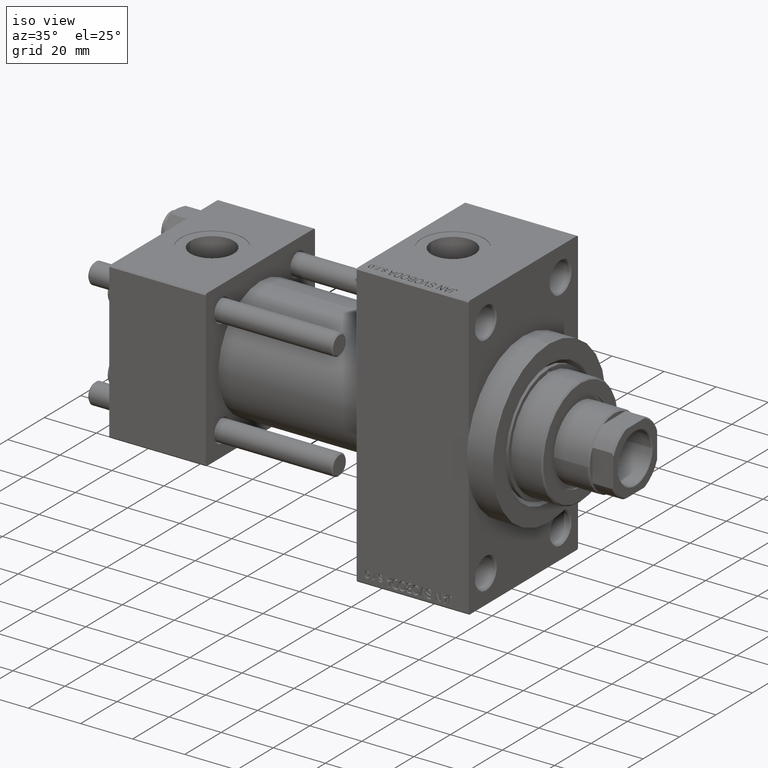
[diagram: clean part render]
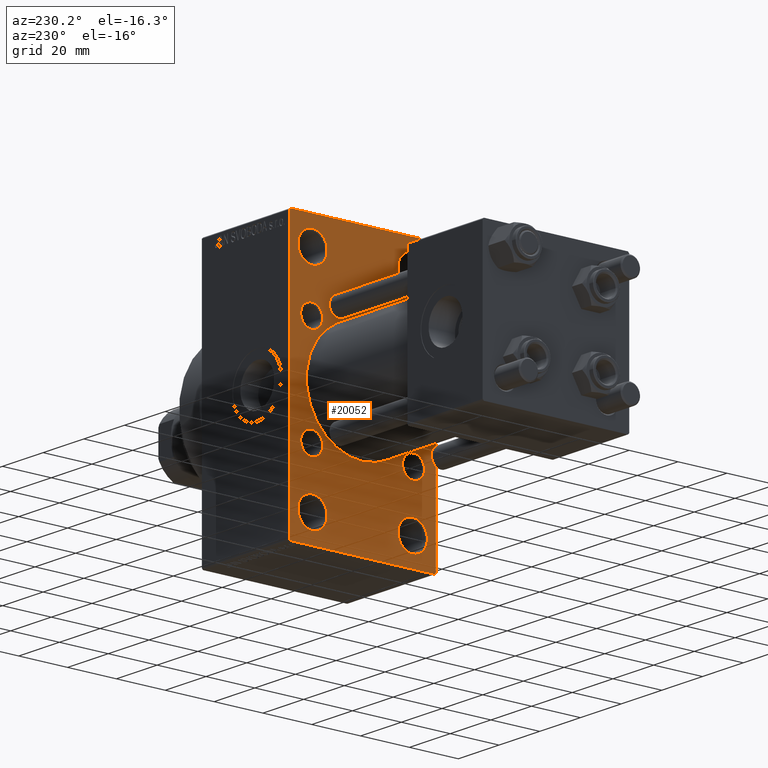
[diagram: tour spotlight — one face highlighted and labeled with its STEP entity id]
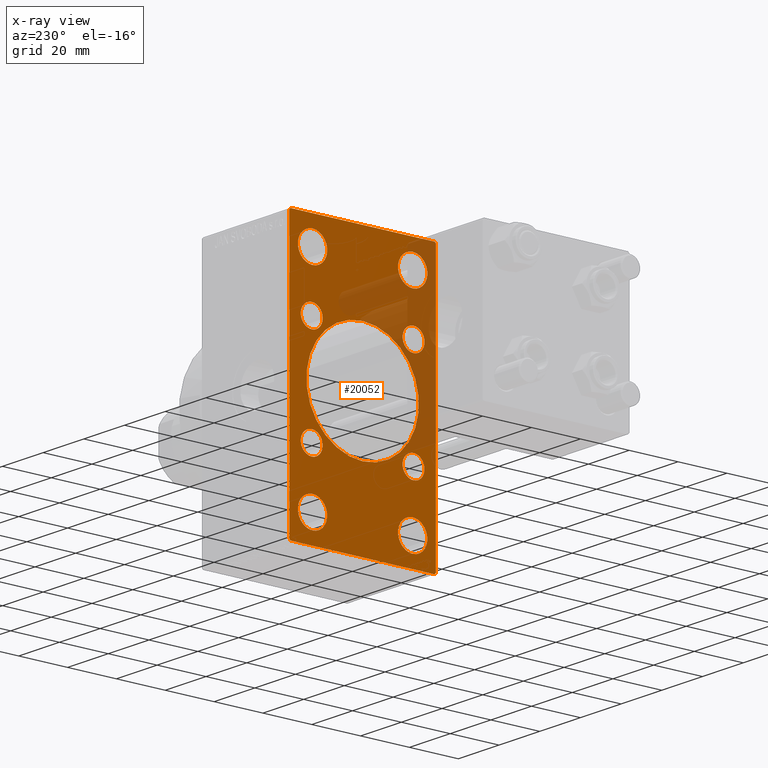
[diagram: x-ray of the same camera — body ghosted, this tour face saturated]
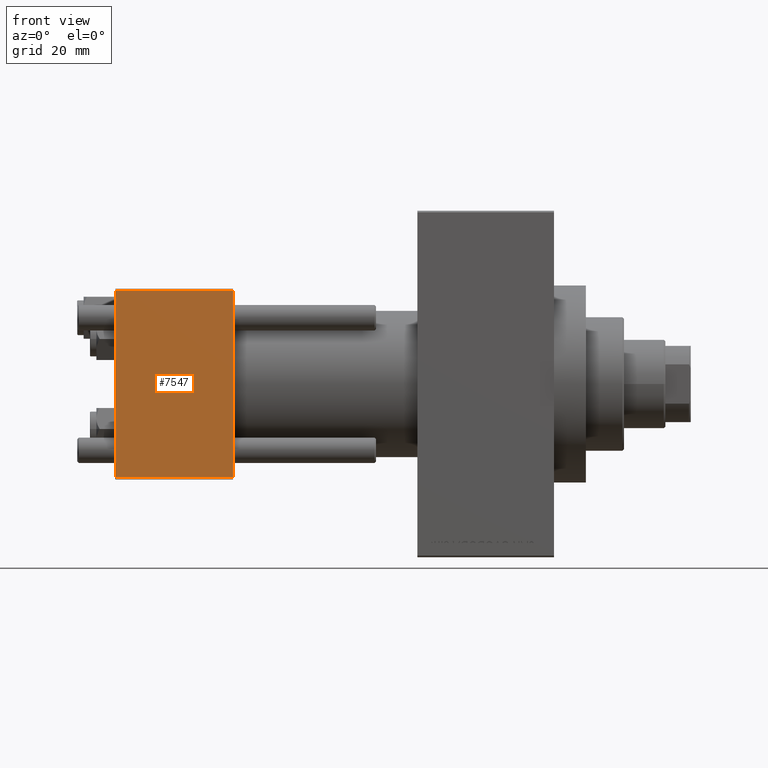
[diagram: tour spotlight — one face highlighted and labeled with its STEP entity id]
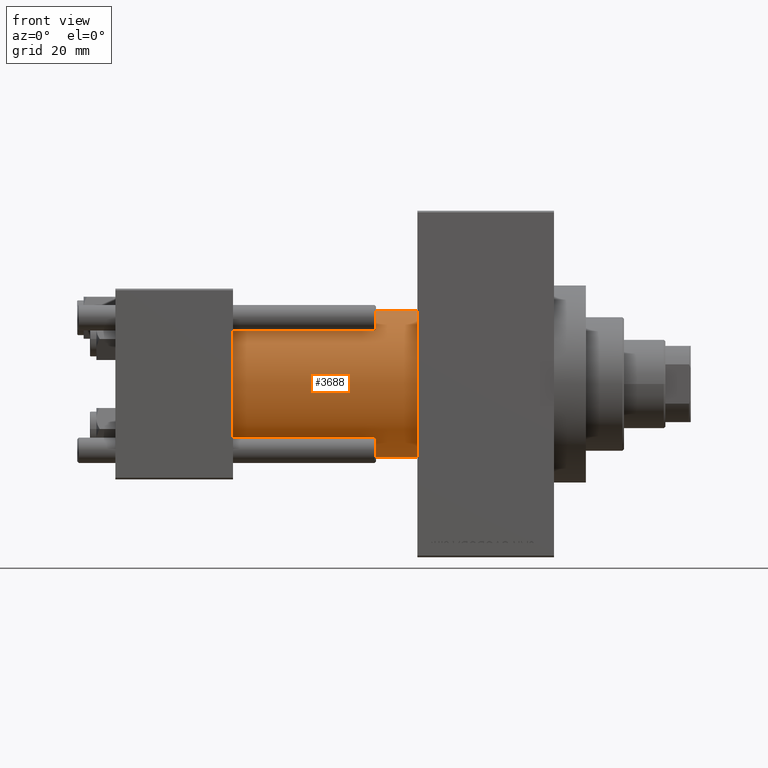
[diagram: tour spotlight — one face highlighted and labeled with its STEP entity id]
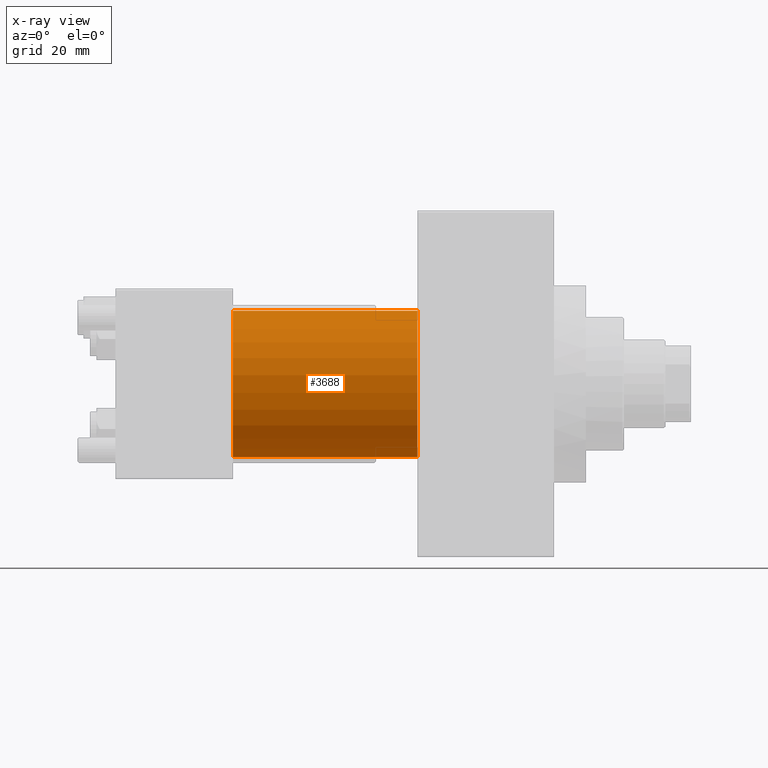
[diagram: x-ray of the same camera — body ghosted, this tour face saturated]
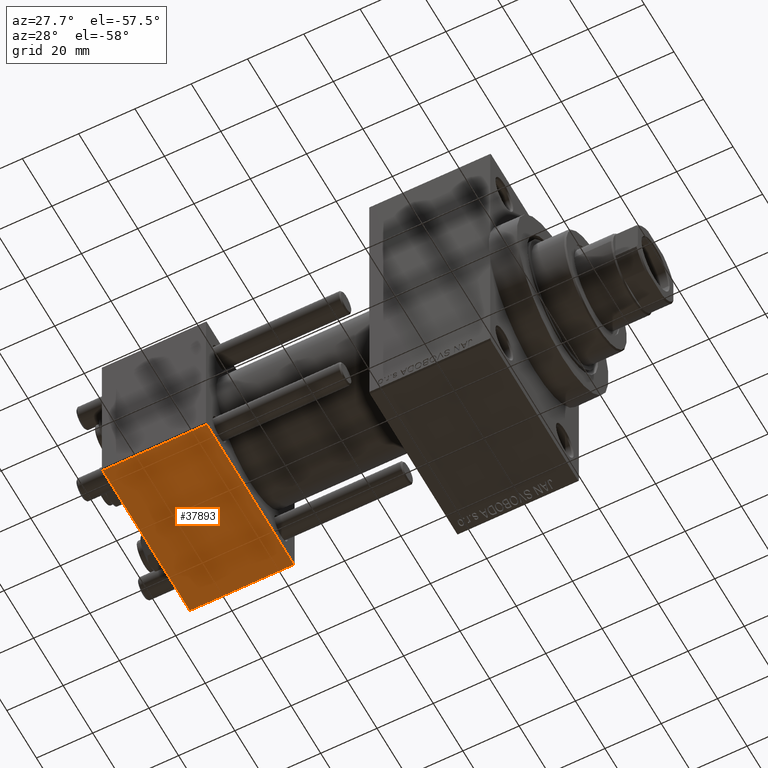
[diagram: tour spotlight — one face highlighted and labeled with its STEP entity id]
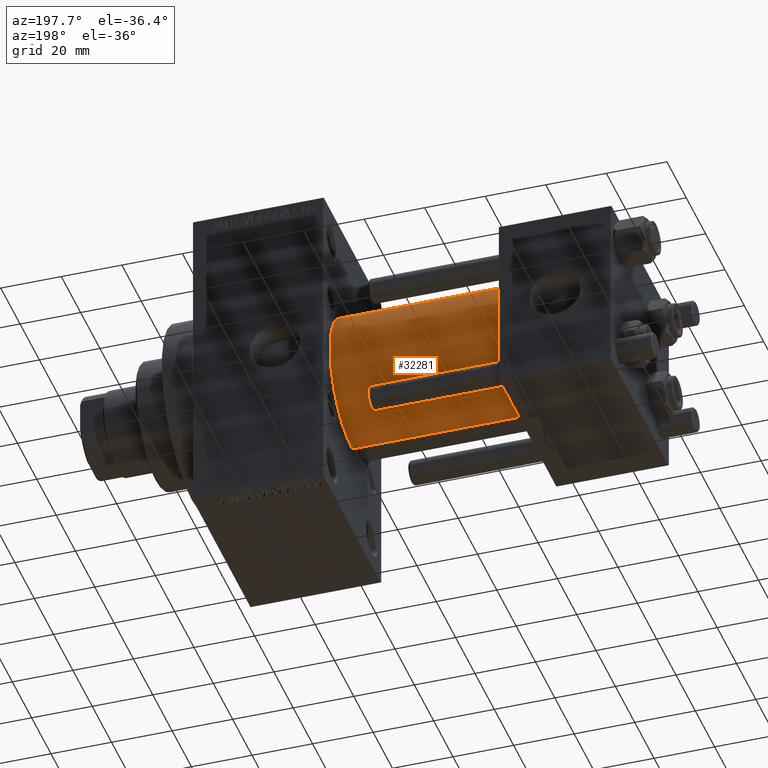
[diagram: tour spotlight — one face highlighted and labeled with its STEP entity id]
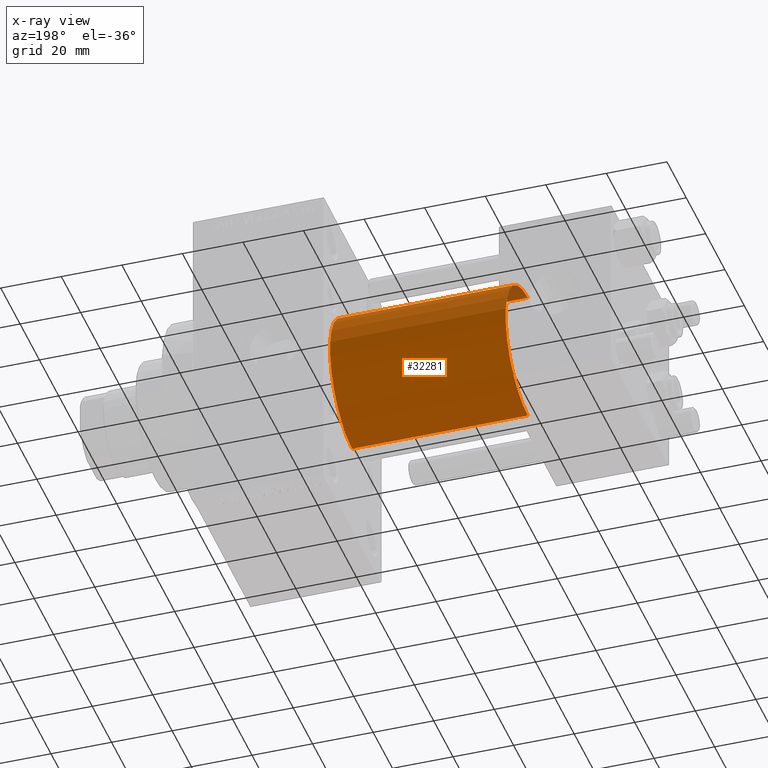
[diagram: x-ray of the same camera — body ghosted, this tour face saturated]
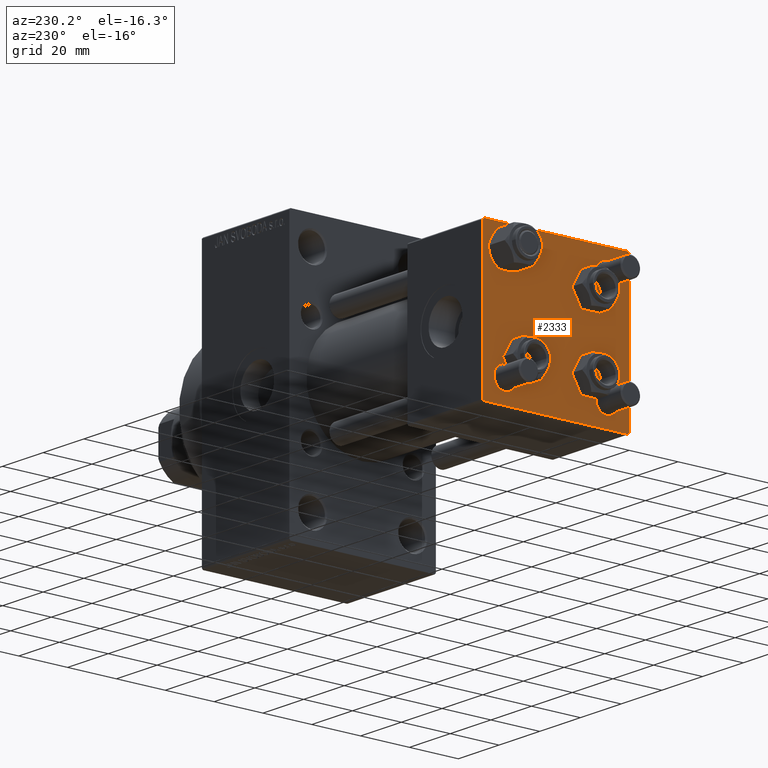
[diagram: tour spotlight — one face highlighted and labeled with its STEP entity id]
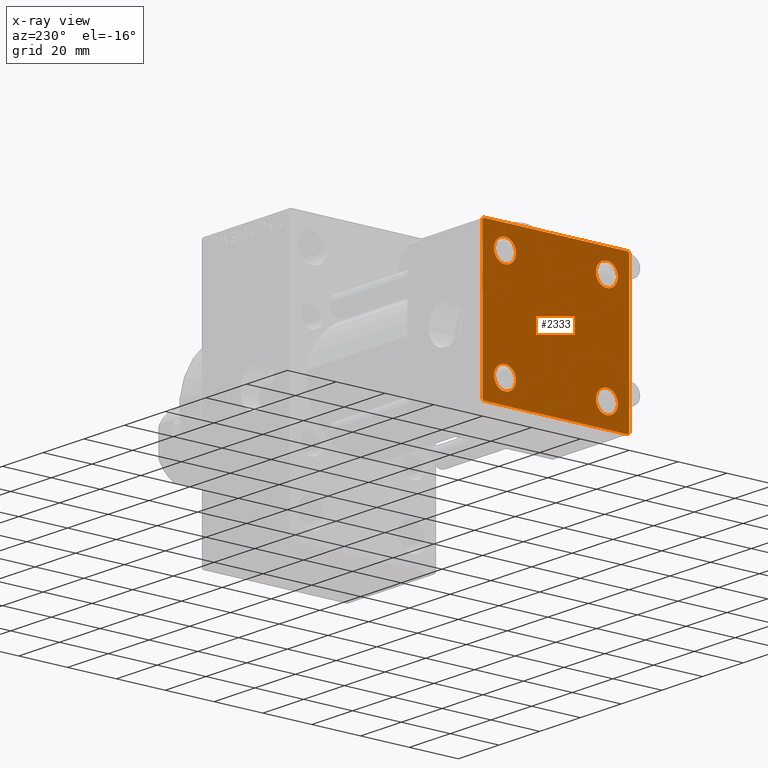
[diagram: x-ray of the same camera — body ghosted, this tour face saturated]
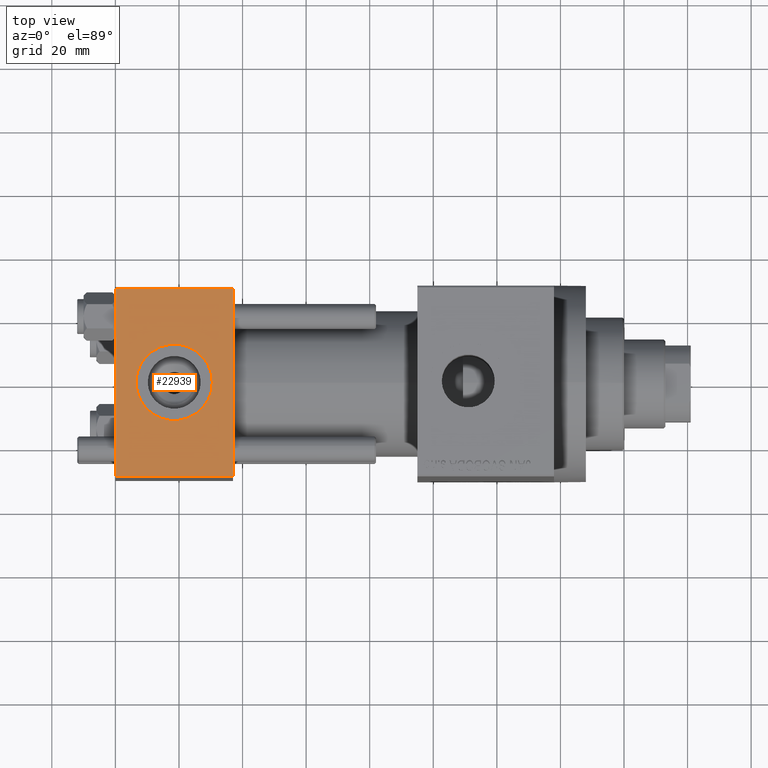
[diagram: tour spotlight — one face highlighted and labeled with its STEP entity id]
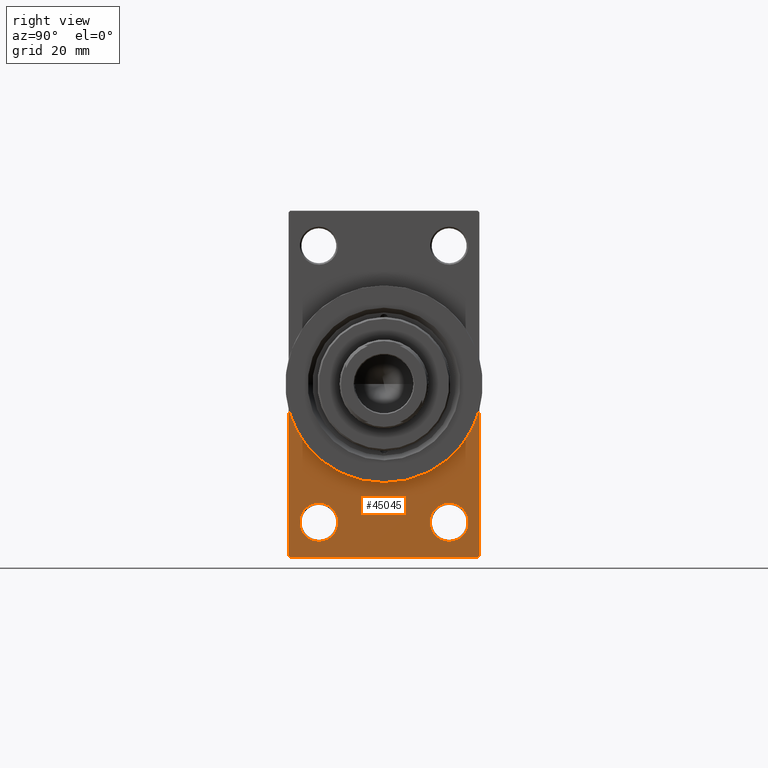
[diagram: tour spotlight — one face highlighted and labeled with its STEP entity id]
A machine part: a face-by-face anatomy tour. The part has 1135 B-rep faces; the first image is the clean iso view, then the 8 largest visible faces are spotlighted one at a time (largest first), each with its STEP entity span.

Face 1 — auxiliary view, entity #20052. An x-ray twin of the same camera follows (body ghosted, this face saturated) — the face is partly hidden behind the body. In plain terms, the highlighted planar face has unit normal (-1, 0, 0).
Definition (entity closure, byte-faithful):
#777 = ORIENTED_EDGE ( 'NONE', *, *, #30415, .T. ) ;
#1439 = EDGE_CURVE ( 'NONE', #8634, #22935, #20045, .T. ) ;
#1589 = FACE_BOUND ( 'NONE', #24789, .T. ) ;
#1869 = VERTEX_POINT ( 'NONE', #4801 ) ;
#1930 = EDGE_CURVE ( 'NONE', #32897, #22038, #19277, .T. ) ;
#2271 = EDGE_CURVE ( 'NONE', #35063, #24866, #26595, .T. ) ;
#2279 = DIRECTION ( 'NONE',  ( 0.000000000000000000, 0.7071067811865474617, -0.7071067811865474617 ) ) ;
#2392 = ORIENTED_EDGE ( 'NONE', *, *, #38003, .T. ) ;
#2405 = ORIENTED_EDGE ( 'NONE', *, *, #5806, .T. ) ;
#2606 = LINE ( 'NONE', #43809, #5998 ) ;
#2713 = VERTEX_POINT ( 'NONE', #42122 ) ;
#3012 = CIRCLE ( 'NONE', #32627, 4.500000000000007105 ) ;
#3257 = CARTESIAN_POINT ( 'NONE',  ( 95.00000000000000000, 20.84999999999999787, -16.34999999999999432 ) ) ;
#3448 = DIRECTION ( 'NONE',  ( -0.000000000000000000, 0.000000000000000000, 1.000000000000000000 ) ) ;
#3501 = DIRECTION ( 'NONE',  ( 1.000000000000000000, -0.000000000000000000, 0.000000000000000000 ) ) ;
#3607 = CARTESIAN_POINT ( 'NONE',  ( 95.00000000000000000, -30.00000000000000000, 54.50000000000000000 ) ) ;
#3663 = EDGE_LOOP ( 'NONE', ( #47225, #20117 ) ) ;
#3843 = DIRECTION ( 'NONE',  ( 1.000000000000000000, 0.000000000000000000, 0.000000000000000000 ) ) ;
#4068 = CARTESIAN_POINT ( 'NONE',  ( 95.00000000000000000, 20.50000000000000000, 37.50000000000009948 ) ) ;
#4112 = CARTESIAN_POINT ( 'NONE',  ( 95.00000000000000000, 20.50000000000000000, -43.50000000000000000 ) ) ;
#4366 = CARTESIAN_POINT ( 'NONE',  ( 95.00000000000000000, -20.84999999999999076, 25.35000000000001208 ) ) ;
#4465 = EDGE_LOOP ( 'NONE', ( #2405, #2392 ) ) ;
#4801 = CARTESIAN_POINT ( 'NONE',  ( 95.00000000000000000, 20.50000000000000000, -49.49999999999989342 ) ) ;
#4810 = VECTOR ( 'NONE', #2279, 1000.000000000000114 ) ;
#4924 = VECTOR ( 'NONE', #39314, 1000.000000000000000 ) ;
#4946 = CIRCLE ( 'NONE', #24434, 5.999999999999894307 ) ;
#5017 = FACE_BOUND ( 'NONE', #3663, .T. ) ;
#5212 = ORIENTED_EDGE ( 'NONE', *, *, #1439, .T. ) ;
#5248 = DIRECTION ( 'NONE',  ( -0.000000000000000000, -0.7071067811865474617, -0.7071067811865474617 ) ) ;
#5346 = EDGE_CURVE ( 'NONE', #22038, #32897, #37316, .T. ) ;
#5377 = AXIS2_PLACEMENT_3D ( 'NONE', #29248, #3843, #44104 ) ;
#5806 = EDGE_CURVE ( 'NONE', #36662, #43168, #26416, .T. ) ;
#5943 = ORIENTED_EDGE ( 'NONE', *, *, #17539, .T. ) ;
#5998 = VECTOR ( 'NONE', #17964, 1000.000000000000000 ) ;
#6162 = CARTESIAN_POINT ( 'NONE',  ( 95.00000000000000000, -20.84999999999999076, 20.85000000000000497 ) ) ;
#6187 = VERTEX_POINT ( 'NONE', #3257 ) ;
#6311 = VERTEX_POINT ( 'NONE', #14729 ) ;
#6334 = DIRECTION ( 'NONE',  ( 1.000000000000000000, -0.000000000000000000, 0.000000000000000000 ) ) ;
#6418 = AXIS2_PLACEMENT_3D ( 'NONE', #9871, #14018, #6691 ) ;
#6691 = DIRECTION ( 'NONE',  ( 0.000000000000000000, 0.000000000000000000, 1.000000000000000000 ) ) ;
#7324 = CIRCLE ( 'NONE', #40052, 4.500000000000007105 ) ;
#7809 = VERTEX_POINT ( 'NONE', #4366 ) ;
#8261 = DIRECTION ( 'NONE',  ( 1.000000000000000000, -0.000000000000000000, 0.000000000000000000 ) ) ;
#8335 = CARTESIAN_POINT ( 'NONE',  ( 95.00000000000000000, 20.84999999999999787, 25.35000000000000853 ) ) ;
#8473 = VERTEX_POINT ( 'NONE', #4068 ) ;
#8634 = VERTEX_POINT ( 'NONE', #46252 ) ;
#8751 = CARTESIAN_POINT ( 'NONE',  ( 95.00000000000000000, -30.00000000000000000, -53.99999999999998579 ) ) ;
#8874 = DIRECTION ( 'NONE',  ( 1.000000000000000000, -0.000000000000000000, 0.000000000000000000 ) ) ;
#8899 = CARTESIAN_POINT ( 'NONE',  ( 95.00000000000000000, -20.50000000000000000, 43.50000000000000000 ) ) ;
#9131 = ORIENTED_EDGE ( 'NONE', *, *, #15257, .T. ) ;
#9199 = ORIENTED_EDGE ( 'NONE', *, *, #5346, .T. ) ;
#9260 = DIRECTION ( 'NONE',  ( 1.000000000000000000, -0.000000000000000000, 0.000000000000000000 ) ) ;
#9322 = CARTESIAN_POINT ( 'NONE',  ( 95.00000000000000000, 29.99999999999999645, 54.49999999999999289 ) ) ;
#9532 = CARTESIAN_POINT ( 'NONE',  ( 95.00000000000000000, 20.84999999999999787, -20.85000000000000142 ) ) ;
#9624 = CIRCLE ( 'NONE', #14296, 5.999999999999894307 ) ;
#9685 = ORIENTED_EDGE ( 'NONE', *, *, #46314, .T. ) ;
#9871 = CARTESIAN_POINT ( 'NONE',  ( 95.00000000000000000, 20.84999999999999787, -20.85000000000000142 ) ) ;
#9891 = CARTESIAN_POINT ( 'NONE',  ( 95.00000000000000000, -30.00000000000000000, 53.99999999999997158 ) ) ;
#10905 = DIRECTION ( 'NONE',  ( 0.000000000000000000, 0.000000000000000000, -1.000000000000000000 ) ) ;
#10991 = DIRECTION ( 'NONE',  ( 0.000000000000000000, -0.7071067811865352493, 0.7071067811865597852 ) ) ;
#11694 = DIRECTION ( 'NONE',  ( 1.000000000000000000, -0.000000000000000000, 0.000000000000000000 ) ) ;
#11969 = CARTESIAN_POINT ( 'NONE',  ( 95.00000000000000000, -20.50000000000000000, 49.49999999999989342 ) ) ;
#12699 = DIRECTION ( 'NONE',  ( 0.000000000000000000, 0.000000000000000000, 1.000000000000000000 ) ) ;
#13565 = ORIENTED_EDGE ( 'NONE', *, *, #38833, .T. ) ;
#13652 = CARTESIAN_POINT ( 'NONE',  ( 95.00000000000000000, 29.99999999999999645, 54.00000000000002132 ) ) ;
#13661 = CIRCLE ( 'NONE', #47110, 5.999999999999894307 ) ;
#13756 = DIRECTION ( 'NONE',  ( 1.000000000000000000, -0.000000000000000000, 0.000000000000000000 ) ) ;
#13937 = CIRCLE ( 'NONE', #34197, 5.999999999999894307 ) ;
#14018 = DIRECTION ( 'NONE',  ( 1.000000000000000000, -0.000000000000000000, 0.000000000000000000 ) ) ;
#14154 = AXIS2_PLACEMENT_3D ( 'NONE', #22065, #3501, #33272 ) ;
#14296 = AXIS2_PLACEMENT_3D ( 'NONE', #20245, #39741, #39262 ) ;
#14452 = ORIENTED_EDGE ( 'NONE', *, *, #30264, .F. ) ;
#14570 = CARTESIAN_POINT ( 'NONE',  ( 95.00000000000000000, -2.602085213965210642E-15, 0.000000000000000000 ) ) ;
#14729 = CARTESIAN_POINT ( 'NONE',  ( 95.00000000000000000, -20.84999999999999076, -25.35000000000001208 ) ) ;
#14773 = ORIENTED_EDGE ( 'NONE', *, *, #21782, .T. ) ;
#15193 = AXIS2_PLACEMENT_3D ( 'NONE', #32525, #13756, #28636 ) ;
#15257 = EDGE_CURVE ( 'NONE', #36922, #42364, #39836, .T. ) ;
#15347 = DIRECTION ( 'NONE',  ( 0.000000000000000000, 0.000000000000000000, 1.000000000000000000 ) ) ;
#16477 = FACE_BOUND ( 'NONE', #48156, .T. ) ;
#16524 = CARTESIAN_POINT ( 'NONE',  ( 95.00000000000000000, 29.99999999999999645, 54.49999999999999289 ) ) ;
#17292 = VERTEX_POINT ( 'NONE', #23741 ) ;
#17363 = AXIS2_PLACEMENT_3D ( 'NONE', #9532, #46833, #31961 ) ;
#17424 = CARTESIAN_POINT ( 'NONE',  ( 95.00000000000000000, -42.00000000000051159, -41.99999999999905498 ) ) ;
#17539 = EDGE_CURVE ( 'NONE', #30326, #6187, #30627, .T. ) ;
#17604 = CIRCLE ( 'NONE', #47974, 4.500000000000007105 ) ;
#17638 = AXIS2_PLACEMENT_3D ( 'NONE', #37908, #8874, #38623 ) ;
#17964 = DIRECTION ( 'NONE',  ( 0.000000000000000000, -1.000000000000000000, -1.156482317317871478E-16 ) ) ;
#17979 = CARTESIAN_POINT ( 'NONE',  ( 95.00000000000000000, 20.50000000000000000, 49.49999999999989342 ) ) ;
#18171 = CARTESIAN_POINT ( 'NONE',  ( 95.00000000000000000, 20.50000000000000000, -37.50000000000009948 ) ) ;
#18501 = DIRECTION ( 'NONE',  ( 0.000000000000000000, 0.000000000000000000, -1.000000000000000000 ) ) ;
#18507 = VECTOR ( 'NONE', #10991, 1000.000000000000000 ) ;
#19062 = FACE_OUTER_BOUND ( 'NONE', #44880, .T. ) ;
#19277 = CIRCLE ( 'NONE', #41099, 5.999999999999894307 ) ;
#19510 = AXIS2_PLACEMENT_3D ( 'NONE', #37687, #33307, #29896 ) ;
#19641 = DIRECTION ( 'NONE',  ( 1.000000000000000000, -0.000000000000000000, 0.000000000000000000 ) ) ;
#19887 = VECTOR ( 'NONE', #18501, 1000.000000000000000 ) ;
#19895 = LINE ( 'NONE', #30644, #30487 ) ;
#19911 = DIRECTION ( 'NONE',  ( 0.000000000000000000, 0.000000000000000000, 1.000000000000000000 ) ) ;
#20045 = CIRCLE ( 'NONE', #38737, 5.999999999999894307 ) ;
#20052 = ADVANCED_FACE ( 'NONE', ( #46951, #28431, #43290, #5017, #23561, #35015, #1589, #16477, #31360, #19062 ), #33932, .T. ) ;
#20101 = CARTESIAN_POINT ( 'NONE',  ( 95.00000000000000000, 42.00000000000000000, 42.00000000000000000 ) ) ;
#20117 = ORIENTED_EDGE ( 'NONE', *, *, #26842, .T. ) ;
#20245 = CARTESIAN_POINT ( 'NONE',  ( 95.00000000000000000, 20.50000000000000000, 43.50000000000000000 ) ) ;
#20298 = LINE ( 'NONE', #9322, #4924 ) ;
#20658 = VERTEX_POINT ( 'NONE', #9891 ) ;
#20668 = CARTESIAN_POINT ( 'NONE',  ( 95.00000000000000000, 20.84999999999999787, -25.35000000000000853 ) ) ;
#20766 = ORIENTED_EDGE ( 'NONE', *, *, #38404, .T. ) ;
#20923 = CARTESIAN_POINT ( 'NONE',  ( 95.00000000000000000, 29.50000000000002132, 54.49999999999999289 ) ) ;
#21700 = AXIS2_PLACEMENT_3D ( 'NONE', #14570, #29455, #10905 ) ;
#21782 = EDGE_CURVE ( 'NONE', #42364, #38065, #20298, .T. ) ;
#22038 = VERTEX_POINT ( 'NONE', #11969 ) ;
#22065 = CARTESIAN_POINT ( 'NONE',  ( 95.00000000000000000, 20.84999999999999787, 20.85000000000000142 ) ) ;
#22151 = EDGE_CURVE ( 'NONE', #47766, #8473, #9624, .T. ) ;
#22276 = ORIENTED_EDGE ( 'NONE', *, *, #24087, .T. ) ;
#22482 = CARTESIAN_POINT ( 'NONE',  ( 95.00000000000000000, 0.000000000000000000, 0.000000000000000000 ) ) ;
#22935 = VERTEX_POINT ( 'NONE', #44902 ) ;
#23470 = EDGE_LOOP ( 'NONE', ( #46243, #5212 ) ) ;
#23561 = FACE_BOUND ( 'NONE', #25694, .T. ) ;
#23711 = ORIENTED_EDGE ( 'NONE', *, *, #29154, .T. ) ;
#23741 = CARTESIAN_POINT ( 'NONE',  ( 95.00000000000000000, -20.84999999999999076, 16.34999999999999787 ) ) ;
#24087 = EDGE_CURVE ( 'NONE', #17292, #7809, #7324, .T. ) ;
#24434 = AXIS2_PLACEMENT_3D ( 'NONE', #28308, #6334, #12699 ) ;
#24574 = DIRECTION ( 'NONE',  ( 0.000000000000000000, -1.000000000000000000, 1.156482317317871478E-16 ) ) ;
#24594 = VERTEX_POINT ( 'NONE', #8335 ) ;
#24789 = EDGE_LOOP ( 'NONE', ( #36445, #5943 ) ) ;
#24866 = VERTEX_POINT ( 'NONE', #8751 ) ;
#25247 = CARTESIAN_POINT ( 'NONE',  ( 95.00000000000000000, 2.146024240737012665E-16, -23.00000000000000000 ) ) ;
#25694 = EDGE_LOOP ( 'NONE', ( #13565, #22276 ) ) ;
#25745 = CIRCLE ( 'NONE', #19510, 4.500000000000007105 ) ;
#26242 = ORIENTED_EDGE ( 'NONE', *, *, #40873, .T. ) ;
#26381 = DIRECTION ( 'NONE',  ( -1.000000000000000000, 0.000000000000000000, -0.000000000000000000 ) ) ;
#26404 = ORIENTED_EDGE ( 'NONE', *, *, #27060, .F. ) ;
#26416 = CIRCLE ( 'NONE', #5377, 23.00000000000000000 ) ;
#26453 = EDGE_CURVE ( 'NONE', #33958, #1869, #47906, .T. ) ;
#26595 = LINE ( 'NONE', #17424, #18507 ) ;
#26842 = EDGE_CURVE ( 'NONE', #8473, #47766, #13661, .T. ) ;
#26902 = ORIENTED_EDGE ( 'NONE', *, *, #2271, .T. ) ;
#27024 = VECTOR ( 'NONE', #24574, 1000.000000000000000 ) ;
#27060 = EDGE_CURVE ( 'NONE', #20658, #24866, #32658, .T. ) ;
#27440 = DIRECTION ( 'NONE',  ( 0.000000000000000000, 0.000000000000000000, 1.000000000000000000 ) ) ;
#27760 = CIRCLE ( 'NONE', #17638, 4.500000000000007105 ) ;
#27967 = EDGE_LOOP ( 'NONE', ( #9199, #37468 ) ) ;
#27975 = DIRECTION ( 'NONE',  ( 1.000000000000000000, -0.000000000000000000, 0.000000000000000000 ) ) ;
#28308 = CARTESIAN_POINT ( 'NONE',  ( 95.00000000000000000, -20.50000000000000000, -43.50000000000000000 ) ) ;
#28379 = DIRECTION ( 'NONE',  ( 0.000000000000000000, 0.000000000000000000, 1.000000000000000000 ) ) ;
#28431 = FACE_BOUND ( 'NONE', #23470, .T. ) ;
#28471 = VERTEX_POINT ( 'NONE', #35683 ) ;
#28636 = DIRECTION ( 'NONE',  ( 0.000000000000000000, 0.000000000000000000, 1.000000000000000000 ) ) ;
#28771 = CARTESIAN_POINT ( 'NONE',  ( 95.00000000000000000, 20.50000000000000000, 43.50000000000000000 ) ) ;
#28880 = EDGE_CURVE ( 'NONE', #6311, #45784, #17604, .T. ) ;
#29154 = EDGE_CURVE ( 'NONE', #24594, #42553, #27760, .T. ) ;
#29248 = CARTESIAN_POINT ( 'NONE',  ( 95.00000000000000000, -2.602085213965210642E-15, 0.000000000000000000 ) ) ;
#29455 = DIRECTION ( 'NONE',  ( 1.000000000000000000, 0.000000000000000000, 0.000000000000000000 ) ) ;
#29506 = DIRECTION ( 'NONE',  ( -0.000000000000000000, 0.7071067811865451302, 0.7071067811865500152 ) ) ;
#29848 = VECTOR ( 'NONE', #29506, 1000.000000000000114 ) ;
#29896 = DIRECTION ( 'NONE',  ( 0.000000000000000000, 0.000000000000000000, 1.000000000000000000 ) ) ;
#29987 = LINE ( 'NONE', #33632, #29848 ) ;
#30171 = EDGE_LOOP ( 'NONE', ( #36911, #20766 ) ) ;
#30264 = EDGE_CURVE ( 'NONE', #36922, #2713, #42612, .T. ) ;
#30326 = VERTEX_POINT ( 'NONE', #20668 ) ;
#30415 = EDGE_CURVE ( 'NONE', #28471, #35063, #2606, .T. ) ;
#30487 = VECTOR ( 'NONE', #5248, 1000.000000000000114 ) ;
#30515 = CIRCLE ( 'NONE', #14154, 4.500000000000007105 ) ;
#30627 = CIRCLE ( 'NONE', #17363, 4.500000000000007105 ) ;
#30644 = CARTESIAN_POINT ( 'NONE',  ( 95.00000000000000000, 41.99999999999998579, -41.99999999999998579 ) ) ;
#31342 = CIRCLE ( 'NONE', #6418, 4.500000000000007105 ) ;
#31351 = AXIS2_PLACEMENT_3D ( 'NONE', #22482, #26381, #3448 ) ;
#31360 = FACE_BOUND ( 'NONE', #4465, .T. ) ;
#31961 = DIRECTION ( 'NONE',  ( 0.000000000000000000, 0.000000000000000000, 1.000000000000000000 ) ) ;
#32199 = CARTESIAN_POINT ( 'NONE',  ( 95.00000000000000000, -2.602085213965210642E-15, 23.00000000000000000 ) ) ;
#32525 = CARTESIAN_POINT ( 'NONE',  ( 95.00000000000000000, 20.50000000000000000, -43.50000000000000000 ) ) ;
#32627 = AXIS2_PLACEMENT_3D ( 'NONE', #6162, #42993, #28379 ) ;
#32658 = LINE ( 'NONE', #3607, #19887 ) ;
#32897 = VERTEX_POINT ( 'NONE', #35980 ) ;
#33272 = DIRECTION ( 'NONE',  ( 0.000000000000000000, 0.000000000000000000, 1.000000000000000000 ) ) ;
#33307 = DIRECTION ( 'NONE',  ( 1.000000000000000000, -0.000000000000000000, 0.000000000000000000 ) ) ;
#33416 = AXIS2_PLACEMENT_3D ( 'NONE', #8899, #19641, #27440 ) ;
#33632 = CARTESIAN_POINT ( 'NONE',  ( 95.00000000000000000, -42.00000000000008527, 41.99999999999979394 ) ) ;
#33932 = PLANE ( 'NONE',  #31351 ) ;
#33958 = VERTEX_POINT ( 'NONE', #18171 ) ;
#34197 = AXIS2_PLACEMENT_3D ( 'NONE', #4112, #8261, #15347 ) ;
#35015 = FACE_BOUND ( 'NONE', #45725, .T. ) ;
#35063 = VERTEX_POINT ( 'NONE', #39531 ) ;
#35683 = CARTESIAN_POINT ( 'NONE',  ( 95.00000000000000000, 29.49999999999999645, -54.49999999999999289 ) ) ;
#35980 = CARTESIAN_POINT ( 'NONE',  ( 95.00000000000000000, -20.50000000000000000, 37.50000000000009948 ) ) ;
#36445 = ORIENTED_EDGE ( 'NONE', *, *, #45886, .T. ) ;
#36608 = DIRECTION ( 'NONE',  ( 1.000000000000000000, -0.000000000000000000, 0.000000000000000000 ) ) ;
#36662 = VERTEX_POINT ( 'NONE', #32199 ) ;
#36911 = ORIENTED_EDGE ( 'NONE', *, *, #26453, .T. ) ;
#36922 = VERTEX_POINT ( 'NONE', #20923 ) ;
#37284 = CIRCLE ( 'NONE', #21700, 23.00000000000000000 ) ;
#37316 = CIRCLE ( 'NONE', #33416, 5.999999999999894307 ) ;
#37468 = ORIENTED_EDGE ( 'NONE', *, *, #1930, .T. ) ;
#37687 = CARTESIAN_POINT ( 'NONE',  ( 95.00000000000000000, -20.84999999999999076, -20.85000000000000497 ) ) ;
#37793 = CARTESIAN_POINT ( 'NONE',  ( 95.00000000000000000, -20.84999999999999076, 20.85000000000000497 ) ) ;
#37908 = CARTESIAN_POINT ( 'NONE',  ( 95.00000000000000000, 20.84999999999999787, 20.85000000000000142 ) ) ;
#38003 = EDGE_CURVE ( 'NONE', #43168, #36662, #37284, .T. ) ;
#38065 = VERTEX_POINT ( 'NONE', #42787 ) ;
#38404 = EDGE_CURVE ( 'NONE', #1869, #33958, #13937, .T. ) ;
#38422 = ORIENTED_EDGE ( 'NONE', *, *, #28880, .T. ) ;
#38445 = CARTESIAN_POINT ( 'NONE',  ( 95.00000000000000000, -20.84999999999999076, -20.85000000000000497 ) ) ;
#38623 = DIRECTION ( 'NONE',  ( 0.000000000000000000, 0.000000000000000000, 1.000000000000000000 ) ) ;
#38737 = AXIS2_PLACEMENT_3D ( 'NONE', #41211, #36608, #40972 ) ;
#38833 = EDGE_CURVE ( 'NONE', #7809, #17292, #3012, .T. ) ;
#38957 = CARTESIAN_POINT ( 'NONE',  ( 95.00000000000000000, 20.84999999999999787, 16.34999999999999432 ) ) ;
#39256 = DIRECTION ( 'NONE',  ( 0.000000000000000000, 0.000000000000000000, 1.000000000000000000 ) ) ;
#39262 = DIRECTION ( 'NONE',  ( 0.000000000000000000, 0.000000000000000000, 1.000000000000000000 ) ) ;
#39314 = DIRECTION ( 'NONE',  ( 0.000000000000000000, 0.000000000000000000, -1.000000000000000000 ) ) ;
#39531 = CARTESIAN_POINT ( 'NONE',  ( 95.00000000000000000, -29.50000000000000355, -54.50000000000000000 ) ) ;
#39660 = DIRECTION ( 'NONE',  ( 0.000000000000000000, 0.000000000000000000, 1.000000000000000000 ) ) ;
#39741 = DIRECTION ( 'NONE',  ( 1.000000000000000000, -0.000000000000000000, 0.000000000000000000 ) ) ;
#39836 = LINE ( 'NONE', #20101, #4810 ) ;
#40052 = AXIS2_PLACEMENT_3D ( 'NONE', #37793, #11694, #45820 ) ;
#40873 = EDGE_CURVE ( 'NONE', #45784, #6311, #25745, .T. ) ;
#40972 = DIRECTION ( 'NONE',  ( 0.000000000000000000, 0.000000000000000000, 1.000000000000000000 ) ) ;
#41099 = AXIS2_PLACEMENT_3D ( 'NONE', #46496, #27975, #39660 ) ;
#41211 = CARTESIAN_POINT ( 'NONE',  ( 95.00000000000000000, -20.50000000000000000, -43.50000000000000000 ) ) ;
#42100 = DIRECTION ( 'NONE',  ( 1.000000000000000000, -0.000000000000000000, 0.000000000000000000 ) ) ;
#42122 = CARTESIAN_POINT ( 'NONE',  ( 95.00000000000000000, -29.49999999999997513, 54.50000000000000000 ) ) ;
#42364 = VERTEX_POINT ( 'NONE', #13652 ) ;
#42553 = VERTEX_POINT ( 'NONE', #38957 ) ;
#42612 = LINE ( 'NONE', #16524, #27024 ) ;
#42787 = CARTESIAN_POINT ( 'NONE',  ( 95.00000000000000000, 29.99999999999999645, -53.99999999999999289 ) ) ;
#42965 = EDGE_CURVE ( 'NONE', #38065, #28471, #19895, .T. ) ;
#42993 = DIRECTION ( 'NONE',  ( 1.000000000000000000, -0.000000000000000000, 0.000000000000000000 ) ) ;
#43168 = VERTEX_POINT ( 'NONE', #25247 ) ;
#43290 = FACE_BOUND ( 'NONE', #30171, .T. ) ;
#43309 = EDGE_CURVE ( 'NONE', #42553, #24594, #30515, .T. ) ;
#43809 = CARTESIAN_POINT ( 'NONE',  ( 95.00000000000000000, 29.99999999999999645, -54.49999999999999289 ) ) ;
#44104 = DIRECTION ( 'NONE',  ( 0.000000000000000000, 0.000000000000000000, -1.000000000000000000 ) ) ;
#44529 = ORIENTED_EDGE ( 'NONE', *, *, #43309, .T. ) ;
#44880 = EDGE_LOOP ( 'NONE', ( #777, #26902, #26404, #9685, #14452, #9131, #14773, #47717 ) ) ;
#44902 = CARTESIAN_POINT ( 'NONE',  ( 95.00000000000000000, -20.50000000000000000, -37.50000000000009948 ) ) ;
#45507 = CARTESIAN_POINT ( 'NONE',  ( 95.00000000000000000, -20.84999999999999076, -16.34999999999999787 ) ) ;
#45725 = EDGE_LOOP ( 'NONE', ( #23711, #44529 ) ) ;
#45784 = VERTEX_POINT ( 'NONE', #45507 ) ;
#45820 = DIRECTION ( 'NONE',  ( 0.000000000000000000, 0.000000000000000000, 1.000000000000000000 ) ) ;
#45886 = EDGE_CURVE ( 'NONE', #6187, #30326, #31342, .T. ) ;
#46243 = ORIENTED_EDGE ( 'NONE', *, *, #47460, .T. ) ;
#46252 = CARTESIAN_POINT ( 'NONE',  ( 95.00000000000000000, -20.50000000000000000, -49.49999999999989342 ) ) ;
#46314 = EDGE_CURVE ( 'NONE', #20658, #2713, #29987, .T. ) ;
#46496 = CARTESIAN_POINT ( 'NONE',  ( 95.00000000000000000, -20.50000000000000000, 43.50000000000000000 ) ) ;
#46833 = DIRECTION ( 'NONE',  ( 1.000000000000000000, -0.000000000000000000, 0.000000000000000000 ) ) ;
#46951 = FACE_BOUND ( 'NONE', #27967, .T. ) ;
#47110 = AXIS2_PLACEMENT_3D ( 'NONE', #28771, #9260, #39256 ) ;
#47225 = ORIENTED_EDGE ( 'NONE', *, *, #22151, .T. ) ;
#47460 = EDGE_CURVE ( 'NONE', #22935, #8634, #4946, .T. ) ;
#47717 = ORIENTED_EDGE ( 'NONE', *, *, #42965, .T. ) ;
#47766 = VERTEX_POINT ( 'NONE', #17979 ) ;
#47906 = CIRCLE ( 'NONE', #15193, 5.999999999999894307 ) ;
#47974 = AXIS2_PLACEMENT_3D ( 'NONE', #38445, #42100, #19911 ) ;
#48156 = EDGE_LOOP ( 'NONE', ( #26242, #38422 ) ) ;

Face 2 — front view, entity #7547. In plain terms, the highlighted planar face has unit normal (0, 1, 0).
Definition (entity closure, byte-faithful):
#273 = PLANE ( 'NONE',  #17119 ) ;
#552 = EDGE_CURVE ( 'NONE', #36030, #31395, #43139, .T. ) ;
#3076 = CARTESIAN_POINT ( 'NONE',  ( 37.00000000000000000, -30.00000000000000000, 29.49999999999999289 ) ) ;
#3100 = EDGE_CURVE ( 'NONE', #36030, #16740, #39368, .T. ) ;
#5954 = DIRECTION ( 'NONE',  ( 0.000000000000000000, 0.000000000000000000, -1.000000000000000000 ) ) ;
#7446 = EDGE_LOOP ( 'NONE', ( #43321, #20230, #34439, #35827 ) ) ;
#7547 = ADVANCED_FACE ( 'NONE', ( #37839 ), #273, .F. ) ;
#9724 = DIRECTION ( 'NONE',  ( -1.000000000000000000, 0.000000000000000000, 0.000000000000000000 ) ) ;
#10596 = CARTESIAN_POINT ( 'NONE',  ( 0.000000000000000000, -30.00000000000000000, 29.49999999999999289 ) ) ;
#12903 = CARTESIAN_POINT ( 'NONE',  ( 37.00000000000000000, -30.00000000000000000, 29.49999999999999289 ) ) ;
#12979 = VECTOR ( 'NONE', #9724, 1000.000000000000000 ) ;
#13472 = DIRECTION ( 'NONE',  ( 1.000000000000000000, 0.000000000000000000, 0.000000000000000000 ) ) ;
#13953 = LINE ( 'NONE', #17615, #44593 ) ;
#16059 = CARTESIAN_POINT ( 'NONE',  ( 37.00000000000000000, -30.00000000000000000, -29.50000000000001776 ) ) ;
#16740 = VERTEX_POINT ( 'NONE', #16059 ) ;
#17119 = AXIS2_PLACEMENT_3D ( 'NONE', #41737, #44907, #22730 ) ;
#17615 = CARTESIAN_POINT ( 'NONE',  ( 37.00000000000000000, -30.00000000000000000, -29.50000000000001776 ) ) ;
#20230 = ORIENTED_EDGE ( 'NONE', *, *, #45312, .T. ) ;
#20273 = DIRECTION ( 'NONE',  ( 0.000000000000000000, 0.000000000000000000, -1.000000000000000000 ) ) ;
#22730 = DIRECTION ( 'NONE',  ( 0.000000000000000000, -0.000000000000000000, 1.000000000000000000 ) ) ;
#24576 = CARTESIAN_POINT ( 'NONE',  ( 0.000000000000000000, -30.00000000000000000, -29.50000000000001776 ) ) ;
#27304 = VERTEX_POINT ( 'NONE', #24576 ) ;
#31395 = VERTEX_POINT ( 'NONE', #10596 ) ;
#31932 = VECTOR ( 'NONE', #20273, 1000.000000000000000 ) ;
#34439 = ORIENTED_EDGE ( 'NONE', *, *, #3100, .F. ) ;
#35827 = ORIENTED_EDGE ( 'NONE', *, *, #552, .T. ) ;
#36030 = VERTEX_POINT ( 'NONE', #3076 ) ;
#37839 = FACE_OUTER_BOUND ( 'NONE', #7446, .T. ) ;
#39368 = LINE ( 'NONE', #47402, #43479 ) ;
#39772 = LINE ( 'NONE', #46123, #31932 ) ;
#40010 = EDGE_CURVE ( 'NONE', #31395, #27304, #39772, .T. ) ;
#41737 = CARTESIAN_POINT ( 'NONE',  ( 37.00000000000000000, -30.00000000000000000, 29.99999999999999289 ) ) ;
#43139 = LINE ( 'NONE', #12903, #12979 ) ;
#43321 = ORIENTED_EDGE ( 'NONE', *, *, #40010, .T. ) ;
#43479 = VECTOR ( 'NONE', #5954, 1000.000000000000000 ) ;
#44593 = VECTOR ( 'NONE', #13472, 1000.000000000000000 ) ;
#44907 = DIRECTION ( 'NONE',  ( -0.000000000000000000, 1.000000000000000000, 0.000000000000000000 ) ) ;
#45312 = EDGE_CURVE ( 'NONE', #27304, #16740, #13953, .T. ) ;
#46123 = CARTESIAN_POINT ( 'NONE',  ( 0.000000000000000000, -30.00000000000000000, 29.99999999999999289 ) ) ;
#47402 = CARTESIAN_POINT ( 'NONE',  ( 37.00000000000000000, -30.00000000000000000, 29.99999999999999289 ) ) ;

Face 3 — front view, entity #3688. An x-ray twin of the same camera follows (body ghosted, this face saturated) — the face is partly hidden behind the body. In plain terms, the highlighted cylindrical surface (partial cylindrical patch) has radius 23 mm, axis along (-1, -0, -0).
Definition (entity closure, byte-faithful):
#1981 = AXIS2_PLACEMENT_3D ( 'NONE', #9927, #38954, #35304 ) ;
#2062 = DIRECTION ( 'NONE',  ( 0.000000000000000000, 0.000000000000000000, 1.000000000000000000 ) ) ;
#2306 = CYLINDRICAL_SURFACE ( 'NONE', #24794, 23.00000000000000000 ) ;
#3688 = ADVANCED_FACE ( 'NONE', ( #8664 ), #2306, .T. ) ;
#3843 = DIRECTION ( 'NONE',  ( 1.000000000000000000, 0.000000000000000000, 0.000000000000000000 ) ) ;
#4361 = EDGE_CURVE ( 'NONE', #43168, #6486, #45856, .T. ) ;
#5377 = AXIS2_PLACEMENT_3D ( 'NONE', #29248, #3843, #44104 ) ;
#5806 = EDGE_CURVE ( 'NONE', #36662, #43168, #26416, .T. ) ;
#6486 = VERTEX_POINT ( 'NONE', #20306 ) ;
#8240 = CARTESIAN_POINT ( 'NONE',  ( 37.00000000000000000, -2.602085213965210642E-15, 23.00000000000000000 ) ) ;
#8554 = DIRECTION ( 'NONE',  ( -1.000000000000000000, -0.000000000000000000, -0.000000000000000000 ) ) ;
#8664 = FACE_OUTER_BOUND ( 'NONE', #21626, .T. ) ;
#9056 = VECTOR ( 'NONE', #35560, 1000.000000000000000 ) ;
#9837 = ORIENTED_EDGE ( 'NONE', *, *, #5806, .F. ) ;
#9927 = CARTESIAN_POINT ( 'NONE',  ( 37.00000000000000000, -2.602085213965210642E-15, 0.000000000000000000 ) ) ;
#11636 = EDGE_CURVE ( 'NONE', #36662, #41531, #20685, .T. ) ;
#13653 = ORIENTED_EDGE ( 'NONE', *, *, #27236, .T. ) ;
#20306 = CARTESIAN_POINT ( 'NONE',  ( 37.00000000000000000, 2.146024240737012665E-16, -23.00000000000000000 ) ) ;
#20685 = LINE ( 'NONE', #46525, #9056 ) ;
#21626 = EDGE_LOOP ( 'NONE', ( #37091, #9837, #22162, #13653 ) ) ;
#22162 = ORIENTED_EDGE ( 'NONE', *, *, #11636, .T. ) ;
#24794 = AXIS2_PLACEMENT_3D ( 'NONE', #42559, #38899, #2062 ) ;
#25247 = CARTESIAN_POINT ( 'NONE',  ( 95.00000000000000000, 2.146024240737012665E-16, -23.00000000000000000 ) ) ;
#26416 = CIRCLE ( 'NONE', #5377, 23.00000000000000000 ) ;
#27236 = EDGE_CURVE ( 'NONE', #41531, #6486, #30023, .T. ) ;
#29248 = CARTESIAN_POINT ( 'NONE',  ( 95.00000000000000000, -2.602085213965210642E-15, 0.000000000000000000 ) ) ;
#29478 = VECTOR ( 'NONE', #8554, 1000.000000000000000 ) ;
#30023 = CIRCLE ( 'NONE', #1981, 23.00000000000000000 ) ;
#32199 = CARTESIAN_POINT ( 'NONE',  ( 95.00000000000000000, -2.602085213965210642E-15, 23.00000000000000000 ) ) ;
#35304 = DIRECTION ( 'NONE',  ( 0.000000000000000000, 0.000000000000000000, 1.000000000000000000 ) ) ;
#35560 = DIRECTION ( 'NONE',  ( -1.000000000000000000, -0.000000000000000000, -0.000000000000000000 ) ) ;
#36662 = VERTEX_POINT ( 'NONE', #32199 ) ;
#37091 = ORIENTED_EDGE ( 'NONE', *, *, #4361, .F. ) ;
#38308 = CARTESIAN_POINT ( 'NONE',  ( 95.00000000000000000, 2.146024240737012665E-16, -23.00000000000000000 ) ) ;
#38899 = DIRECTION ( 'NONE',  ( -1.000000000000000000, -0.000000000000000000, -0.000000000000000000 ) ) ;
#38954 = DIRECTION ( 'NONE',  ( 1.000000000000000000, -0.000000000000000000, 0.000000000000000000 ) ) ;
#41531 = VERTEX_POINT ( 'NONE', #8240 ) ;
#42559 = CARTESIAN_POINT ( 'NONE',  ( 95.00000000000000000, -2.602085213965210642E-15, 0.000000000000000000 ) ) ;
#43168 = VERTEX_POINT ( 'NONE', #25247 ) ;
#44104 = DIRECTION ( 'NONE',  ( 0.000000000000000000, 0.000000000000000000, -1.000000000000000000 ) ) ;
#45856 = LINE ( 'NONE', #38308, #29478 ) ;
#46525 = CARTESIAN_POINT ( 'NONE',  ( 95.00000000000000000, -2.602085213965210642E-15, 23.00000000000000000 ) ) ;

Face 4 — auxiliary view, entity #37893. In plain terms, the highlighted planar face has unit normal (0, 0, -1).
Definition (entity closure, byte-faithful):
#49 = CARTESIAN_POINT ( 'NONE',  ( 0.000000000000000000, 29.99999999999999289, -30.00000000000000000 ) ) ;
#1107 = EDGE_CURVE ( 'NONE', #40995, #22639, #37140, .T. ) ;
#1985 = EDGE_LOOP ( 'NONE', ( #45248, #40391, #25459, #21404 ) ) ;
#5235 = VECTOR ( 'NONE', #11282, 1000.000000000000000 ) ;
#5559 = DIRECTION ( 'NONE',  ( 0.000000000000000000, 1.000000000000000000, 1.156482317317871725E-16 ) ) ;
#9954 = PLANE ( 'NONE',  #31821 ) ;
#10841 = LINE ( 'NONE', #11322, #39656 ) ;
#11282 = DIRECTION ( 'NONE',  ( 0.000000000000000000, -1.000000000000000000, -1.156482317317871725E-16 ) ) ;
#11322 = CARTESIAN_POINT ( 'NONE',  ( 37.00000000000000000, 29.99999999999999289, -30.00000000000000000 ) ) ;
#11647 = VERTEX_POINT ( 'NONE', #38729 ) ;
#12395 = CARTESIAN_POINT ( 'NONE',  ( 37.00000000000000000, -29.50000000000000000, -30.00000000000000711 ) ) ;
#14145 = DIRECTION ( 'NONE',  ( -1.000000000000000000, 0.000000000000000000, 0.000000000000000000 ) ) ;
#17288 = LINE ( 'NONE', #24125, #28404 ) ;
#17654 = CARTESIAN_POINT ( 'NONE',  ( 0.000000000000000000, 29.49999999999997868, -30.00000000000000000 ) ) ;
#20449 = CARTESIAN_POINT ( 'NONE',  ( 37.00000000000000000, 29.99999999999999289, -30.00000000000000000 ) ) ;
#21404 = ORIENTED_EDGE ( 'NONE', *, *, #33659, .T. ) ;
#22639 = VERTEX_POINT ( 'NONE', #27642 ) ;
#24125 = CARTESIAN_POINT ( 'NONE',  ( 37.00000000000000000, 29.49999999999997868, -30.00000000000000000 ) ) ;
#25459 = ORIENTED_EDGE ( 'NONE', *, *, #38605, .T. ) ;
#25603 = LINE ( 'NONE', #47545, #27019 ) ;
#25785 = EDGE_CURVE ( 'NONE', #40995, #11647, #17288, .T. ) ;
#27019 = VECTOR ( 'NONE', #14145, 1000.000000000000000 ) ;
#27642 = CARTESIAN_POINT ( 'NONE',  ( 0.000000000000000000, -29.50000000000000000, -30.00000000000000711 ) ) ;
#27902 = VERTEX_POINT ( 'NONE', #12395 ) ;
#28404 = VECTOR ( 'NONE', #35342, 1000.000000000000000 ) ;
#31436 = FACE_OUTER_BOUND ( 'NONE', #1985, .T. ) ;
#31821 = AXIS2_PLACEMENT_3D ( 'NONE', #20449, #38978, #5559 ) ;
#33659 = EDGE_CURVE ( 'NONE', #27902, #22639, #25603, .T. ) ;
#35342 = DIRECTION ( 'NONE',  ( 1.000000000000000000, 0.000000000000000000, 0.000000000000000000 ) ) ;
#37140 = LINE ( 'NONE', #49, #5235 ) ;
#37893 = ADVANCED_FACE ( 'NONE', ( #31436 ), #9954, .T. ) ;
#38605 = EDGE_CURVE ( 'NONE', #11647, #27902, #10841, .T. ) ;
#38729 = CARTESIAN_POINT ( 'NONE',  ( 37.00000000000000000, 29.49999999999997868, -30.00000000000000000 ) ) ;
#38978 = DIRECTION ( 'NONE',  ( 0.000000000000000000, 1.156482317317871725E-16, -1.000000000000000000 ) ) ;
#39656 = VECTOR ( 'NONE', #44730, 1000.000000000000000 ) ;
#40391 = ORIENTED_EDGE ( 'NONE', *, *, #25785, .T. ) ;
#40995 = VERTEX_POINT ( 'NONE', #17654 ) ;
#44730 = DIRECTION ( 'NONE',  ( 0.000000000000000000, -1.000000000000000000, -1.156482317317871725E-16 ) ) ;
#45248 = ORIENTED_EDGE ( 'NONE', *, *, #1107, .F. ) ;
#47545 = CARTESIAN_POINT ( 'NONE',  ( 0.000000000000000000, -29.50000000000001066, -30.00000000000000711 ) ) ;

Face 5 — auxiliary view, entity #32281. An x-ray twin of the same camera follows (body ghosted, this face saturated) — the face is partly hidden behind the body. In plain terms, the highlighted cylindrical surface (partial cylindrical patch) has radius 23 mm, axis along (-1, -0, -0).
Definition (entity closure, byte-faithful):
#1734 = EDGE_LOOP ( 'NONE', ( #8579, #13103, #21543, #31888 ) ) ;
#2134 = DIRECTION ( 'NONE',  ( 1.000000000000000000, -0.000000000000000000, 0.000000000000000000 ) ) ;
#4361 = EDGE_CURVE ( 'NONE', #43168, #6486, #45856, .T. ) ;
#5551 = DIRECTION ( 'NONE',  ( 0.000000000000000000, 0.000000000000000000, 1.000000000000000000 ) ) ;
#6486 = VERTEX_POINT ( 'NONE', #20306 ) ;
#8240 = CARTESIAN_POINT ( 'NONE',  ( 37.00000000000000000, -2.602085213965210642E-15, 23.00000000000000000 ) ) ;
#8554 = DIRECTION ( 'NONE',  ( -1.000000000000000000, -0.000000000000000000, -0.000000000000000000 ) ) ;
#8579 = ORIENTED_EDGE ( 'NONE', *, *, #38003, .F. ) ;
#9056 = VECTOR ( 'NONE', #35560, 1000.000000000000000 ) ;
#9682 = CARTESIAN_POINT ( 'NONE',  ( 95.00000000000000000, -2.602085213965210642E-15, 0.000000000000000000 ) ) ;
#9705 = CARTESIAN_POINT ( 'NONE',  ( 37.00000000000000000, -2.602085213965210642E-15, 0.000000000000000000 ) ) ;
#10905 = DIRECTION ( 'NONE',  ( 0.000000000000000000, 0.000000000000000000, -1.000000000000000000 ) ) ;
#11636 = EDGE_CURVE ( 'NONE', #36662, #41531, #20685, .T. ) ;
#11641 = EDGE_CURVE ( 'NONE', #6486, #41531, #36082, .T. ) ;
#13103 = ORIENTED_EDGE ( 'NONE', *, *, #4361, .T. ) ;
#14570 = CARTESIAN_POINT ( 'NONE',  ( 95.00000000000000000, -2.602085213965210642E-15, 0.000000000000000000 ) ) ;
#16516 = CYLINDRICAL_SURFACE ( 'NONE', #36441, 23.00000000000000000 ) ;
#20306 = CARTESIAN_POINT ( 'NONE',  ( 37.00000000000000000, 2.146024240737012665E-16, -23.00000000000000000 ) ) ;
#20685 = LINE ( 'NONE', #46525, #9056 ) ;
#21543 = ORIENTED_EDGE ( 'NONE', *, *, #11641, .T. ) ;
#21700 = AXIS2_PLACEMENT_3D ( 'NONE', #14570, #29455, #10905 ) ;
#22041 = AXIS2_PLACEMENT_3D ( 'NONE', #9705, #2134, #5551 ) ;
#25247 = CARTESIAN_POINT ( 'NONE',  ( 95.00000000000000000, 2.146024240737012665E-16, -23.00000000000000000 ) ) ;
#27738 = DIRECTION ( 'NONE',  ( -1.000000000000000000, -0.000000000000000000, -0.000000000000000000 ) ) ;
#29455 = DIRECTION ( 'NONE',  ( 1.000000000000000000, 0.000000000000000000, 0.000000000000000000 ) ) ;
#29478 = VECTOR ( 'NONE', #8554, 1000.000000000000000 ) ;
#31399 = DIRECTION ( 'NONE',  ( 0.000000000000000000, 0.000000000000000000, 1.000000000000000000 ) ) ;
#31888 = ORIENTED_EDGE ( 'NONE', *, *, #11636, .F. ) ;
#32199 = CARTESIAN_POINT ( 'NONE',  ( 95.00000000000000000, -2.602085213965210642E-15, 23.00000000000000000 ) ) ;
#32281 = ADVANCED_FACE ( 'NONE', ( #42121 ), #16516, .T. ) ;
#35560 = DIRECTION ( 'NONE',  ( -1.000000000000000000, -0.000000000000000000, -0.000000000000000000 ) ) ;
#36082 = CIRCLE ( 'NONE', #22041, 23.00000000000000000 ) ;
#36441 = AXIS2_PLACEMENT_3D ( 'NONE', #9682, #27738, #31399 ) ;
#36662 = VERTEX_POINT ( 'NONE', #32199 ) ;
#37284 = CIRCLE ( 'NONE', #21700, 23.00000000000000000 ) ;
#38003 = EDGE_CURVE ( 'NONE', #43168, #36662, #37284, .T. ) ;
#38308 = CARTESIAN_POINT ( 'NONE',  ( 95.00000000000000000, 2.146024240737012665E-16, -23.00000000000000000 ) ) ;
#41531 = VERTEX_POINT ( 'NONE', #8240 ) ;
#42121 = FACE_OUTER_BOUND ( 'NONE', #1734, .T. ) ;
#43168 = VERTEX_POINT ( 'NONE', #25247 ) ;
#45856 = LINE ( 'NONE', #38308, #29478 ) ;
#46525 = CARTESIAN_POINT ( 'NONE',  ( 95.00000000000000000, -2.602085213965210642E-15, 23.00000000000000000 ) ) ;

Face 6 — auxiliary view, entity #2333. An x-ray twin of the same camera follows (body ghosted, this face saturated) — the face is partly hidden behind the body. In plain terms, the highlighted planar face has unit normal (-1, 0, 0).
Definition (entity closure, byte-faithful):
#42 = AXIS2_PLACEMENT_3D ( 'NONE', #2822, #40139, #21382 ) ;
#49 = CARTESIAN_POINT ( 'NONE',  ( 0.000000000000000000, 29.99999999999999289, -30.00000000000000000 ) ) ;
#64 = ORIENTED_EDGE ( 'NONE', *, *, #15500, .F. ) ;
#137 = VECTOR ( 'NONE', #19327, 1000.000000000000000 ) ;
#956 = EDGE_CURVE ( 'NONE', #14415, #46366, #48055, .T. ) ;
#1107 = EDGE_CURVE ( 'NONE', #40995, #22639, #37140, .T. ) ;
#1547 = CIRCLE ( 'NONE', #41269, 4.500000000000017764 ) ;
#2022 = ORIENTED_EDGE ( 'NONE', *, *, #9762, .T. ) ;
#2103 = AXIS2_PLACEMENT_3D ( 'NONE', #6900, #35703, #35461 ) ;
#2132 = DIRECTION ( 'NONE',  ( 0.000000000000000000, 0.000000000000000000, 1.000000000000000000 ) ) ;
#2333 = ADVANCED_FACE ( 'NONE', ( #25870, #14647, #15135, #3659, #28643 ), #30257, .T. ) ;
#2768 = DIRECTION ( 'NONE',  ( -0.000000000000000000, 0.000000000000000000, 1.000000000000000000 ) ) ;
#2822 = CARTESIAN_POINT ( 'NONE',  ( 0.000000000000000000, -20.84999999999999076, 20.85000000000000497 ) ) ;
#3357 = EDGE_CURVE ( 'NONE', #46366, #14415, #39573, .T. ) ;
#3617 = LINE ( 'NONE', #10232, #12726 ) ;
#3659 = FACE_BOUND ( 'NONE', #33488, .T. ) ;
#3932 = CARTESIAN_POINT ( 'NONE',  ( 0.000000000000000000, -20.84999999999999076, 20.85000000000000497 ) ) ;
#3978 = DIRECTION ( 'NONE',  ( 0.000000000000000000, 0.000000000000000000, 1.000000000000000000 ) ) ;
#4358 = ORIENTED_EDGE ( 'NONE', *, *, #36973, .T. ) ;
#4517 = EDGE_CURVE ( 'NONE', #31395, #21495, #22178, .T. ) ;
#4925 = CARTESIAN_POINT ( 'NONE',  ( 0.000000000000000000, 29.99999999999999289, 30.00000000000000000 ) ) ;
#5235 = VECTOR ( 'NONE', #11282, 1000.000000000000000 ) ;
#5436 = CARTESIAN_POINT ( 'NONE',  ( 0.000000000000000000, 20.84999999999999787, 16.34999999999998366 ) ) ;
#5611 = CARTESIAN_POINT ( 'NONE',  ( 0.000000000000000000, -20.84999999999999076, 25.35000000000002274 ) ) ;
#6409 = CARTESIAN_POINT ( 'NONE',  ( 0.000000000000000000, 29.74999999999999645, 29.74999999999999645 ) ) ;
#6666 = VERTEX_POINT ( 'NONE', #9811 ) ;
#6815 = DIRECTION ( 'NONE',  ( 0.000000000000000000, -0.7071067811865474617, 0.7071067811865474617 ) ) ;
#6900 = CARTESIAN_POINT ( 'NONE',  ( 0.000000000000000000, -20.84999999999999076, -20.85000000000000497 ) ) ;
#7034 = CARTESIAN_POINT ( 'NONE',  ( 0.000000000000000000, -20.84999999999999076, 16.34999999999998721 ) ) ;
#7501 = EDGE_CURVE ( 'NONE', #27000, #23052, #1547, .T. ) ;
#8740 = ORIENTED_EDGE ( 'NONE', *, *, #1107, .T. ) ;
#9307 = CARTESIAN_POINT ( 'NONE',  ( 0.000000000000000000, 29.99999999999999289, 30.00000000000000000 ) ) ;
#9703 = DIRECTION ( 'NONE',  ( 1.000000000000000000, -0.000000000000000000, 0.000000000000000000 ) ) ;
#9762 = EDGE_CURVE ( 'NONE', #23052, #27000, #45238, .T. ) ;
#9811 = CARTESIAN_POINT ( 'NONE',  ( 0.000000000000000000, 20.84999999999999787, -25.35000000000001918 ) ) ;
#10232 = CARTESIAN_POINT ( 'NONE',  ( 0.000000000000000000, -29.75000000000001066, -29.75000000000001066 ) ) ;
#10314 = EDGE_CURVE ( 'NONE', #20413, #15192, #21265, .T. ) ;
#10596 = CARTESIAN_POINT ( 'NONE',  ( 0.000000000000000000, -30.00000000000000000, 29.49999999999999289 ) ) ;
#11093 = AXIS2_PLACEMENT_3D ( 'NONE', #37402, #48128, #3978 ) ;
#11282 = DIRECTION ( 'NONE',  ( 0.000000000000000000, -1.000000000000000000, -1.156482317317871725E-16 ) ) ;
#12726 = VECTOR ( 'NONE', #6815, 1000.000000000000114 ) ;
#13225 = DIRECTION ( 'NONE',  ( 0.000000000000000000, 0.000000000000000000, 1.000000000000000000 ) ) ;
#13426 = CIRCLE ( 'NONE', #32916, 4.500000000000017764 ) ;
#14337 = CARTESIAN_POINT ( 'NONE',  ( 0.000000000000000000, 20.84999999999999787, -20.85000000000000142 ) ) ;
#14415 = VERTEX_POINT ( 'NONE', #38622 ) ;
#14462 = EDGE_LOOP ( 'NONE', ( #4358, #23003 ) ) ;
#14647 = FACE_BOUND ( 'NONE', #28020, .T. ) ;
#15135 = FACE_BOUND ( 'NONE', #14462, .T. ) ;
#15192 = VERTEX_POINT ( 'NONE', #15976 ) ;
#15500 = EDGE_CURVE ( 'NONE', #17413, #21495, #27126, .T. ) ;
#15803 = CIRCLE ( 'NONE', #11093, 4.500000000000017764 ) ;
#15976 = CARTESIAN_POINT ( 'NONE',  ( 0.000000000000000000, 29.99999999999999289, -29.50000000000000000 ) ) ;
#16432 = EDGE_CURVE ( 'NONE', #28154, #34027, #15803, .T. ) ;
#16759 = DIRECTION ( 'NONE',  ( -0.000000000000000000, -0.7071067811865574537, -0.7071067811865376918 ) ) ;
#16998 = AXIS2_PLACEMENT_3D ( 'NONE', #47012, #9703, #2132 ) ;
#17371 = DIRECTION ( 'NONE',  ( 1.000000000000000000, -0.000000000000000000, 0.000000000000000000 ) ) ;
#17413 = VERTEX_POINT ( 'NONE', #23444 ) ;
#17431 = ORIENTED_EDGE ( 'NONE', *, *, #32296, .T. ) ;
#17654 = CARTESIAN_POINT ( 'NONE',  ( 0.000000000000000000, 29.49999999999997868, -30.00000000000000000 ) ) ;
#17759 = DIRECTION ( 'NONE',  ( 0.000000000000000000, 0.000000000000000000, 1.000000000000000000 ) ) ;
#18513 = DIRECTION ( 'NONE',  ( -0.000000000000000000, 0.7071067811865474617, 0.7071067811865474617 ) ) ;
#18827 = DIRECTION ( 'NONE',  ( 0.000000000000000000, 0.000000000000000000, 1.000000000000000000 ) ) ;
#19322 = CARTESIAN_POINT ( 'NONE',  ( 0.000000000000000000, 20.84999999999999787, -16.34999999999998366 ) ) ;
#19327 = DIRECTION ( 'NONE',  ( 0.000000000000000000, -1.000000000000000000, -1.156482317317871725E-16 ) ) ;
#19367 = CIRCLE ( 'NONE', #33385, 4.500000000000017764 ) ;
#19452 = EDGE_CURVE ( 'NONE', #34027, #28154, #13426, .T. ) ;
#20273 = DIRECTION ( 'NONE',  ( 0.000000000000000000, 0.000000000000000000, -1.000000000000000000 ) ) ;
#20413 = VERTEX_POINT ( 'NONE', #36058 ) ;
#21184 = ORIENTED_EDGE ( 'NONE', *, *, #47575, .T. ) ;
#21265 = LINE ( 'NONE', #9307, #42908 ) ;
#21304 = DIRECTION ( 'NONE',  ( 0.000000000000000000, 0.7071067811865474617, -0.7071067811865474617 ) ) ;
#21382 = DIRECTION ( 'NONE',  ( 0.000000000000000000, 0.000000000000000000, 1.000000000000000000 ) ) ;
#21495 = VERTEX_POINT ( 'NONE', #24269 ) ;
#22178 = LINE ( 'NONE', #29501, #44270 ) ;
#22639 = VERTEX_POINT ( 'NONE', #27642 ) ;
#23003 = ORIENTED_EDGE ( 'NONE', *, *, #37945, .T. ) ;
#23052 = VERTEX_POINT ( 'NONE', #5611 ) ;
#23444 = CARTESIAN_POINT ( 'NONE',  ( 0.000000000000000000, 29.49999999999999289, 30.00000000000000000 ) ) ;
#24081 = LINE ( 'NONE', #38944, #45674 ) ;
#24269 = CARTESIAN_POINT ( 'NONE',  ( 0.000000000000000000, -29.49999999999998579, 29.99999999999999289 ) ) ;
#24576 = CARTESIAN_POINT ( 'NONE',  ( 0.000000000000000000, -30.00000000000000000, -29.50000000000001776 ) ) ;
#25870 = FACE_BOUND ( 'NONE', #28870, .T. ) ;
#26252 = VECTOR ( 'NONE', #21304, 1000.000000000000114 ) ;
#26869 = DIRECTION ( 'NONE',  ( 1.000000000000000000, -0.000000000000000000, 0.000000000000000000 ) ) ;
#27000 = VERTEX_POINT ( 'NONE', #7034 ) ;
#27126 = LINE ( 'NONE', #4925, #137 ) ;
#27304 = VERTEX_POINT ( 'NONE', #24576 ) ;
#27642 = CARTESIAN_POINT ( 'NONE',  ( 0.000000000000000000, -29.50000000000000000, -30.00000000000000711 ) ) ;
#28020 = EDGE_LOOP ( 'NONE', ( #41397, #42192 ) ) ;
#28154 = VERTEX_POINT ( 'NONE', #46465 ) ;
#28643 = FACE_OUTER_BOUND ( 'NONE', #46382, .T. ) ;
#28870 = EDGE_LOOP ( 'NONE', ( #2022, #33537 ) ) ;
#29501 = CARTESIAN_POINT ( 'NONE',  ( -0.000000000000000000, -29.74999999999999645, 29.74999999999999645 ) ) ;
#30257 = PLANE ( 'NONE',  #38763 ) ;
#31395 = VERTEX_POINT ( 'NONE', #10596 ) ;
#31932 = VECTOR ( 'NONE', #20273, 1000.000000000000000 ) ;
#31995 = CARTESIAN_POINT ( 'NONE',  ( 0.000000000000000000, -20.84999999999999076, -20.85000000000000497 ) ) ;
#32296 = EDGE_CURVE ( 'NONE', #15192, #40995, #24081, .T. ) ;
#32471 = DIRECTION ( 'NONE',  ( 0.000000000000000000, 0.000000000000000000, -1.000000000000000000 ) ) ;
#32916 = AXIS2_PLACEMENT_3D ( 'NONE', #40939, #33387, #36337 ) ;
#32920 = CARTESIAN_POINT ( 'NONE',  ( 0.000000000000000000, -20.84999999999999076, -16.34999999999998721 ) ) ;
#33361 = CIRCLE ( 'NONE', #16998, 4.500000000000017764 ) ;
#33385 = AXIS2_PLACEMENT_3D ( 'NONE', #14337, #44077, #17759 ) ;
#33387 = DIRECTION ( 'NONE',  ( 1.000000000000000000, -0.000000000000000000, 0.000000000000000000 ) ) ;
#33488 = EDGE_LOOP ( 'NONE', ( #41217, #38987 ) ) ;
#33537 = ORIENTED_EDGE ( 'NONE', *, *, #7501, .T. ) ;
#34027 = VERTEX_POINT ( 'NONE', #5436 ) ;
#34215 = EDGE_CURVE ( 'NONE', #17413, #20413, #39822, .T. ) ;
#35461 = DIRECTION ( 'NONE',  ( 0.000000000000000000, 0.000000000000000000, 1.000000000000000000 ) ) ;
#35703 = DIRECTION ( 'NONE',  ( 1.000000000000000000, -0.000000000000000000, 0.000000000000000000 ) ) ;
#35760 = ORIENTED_EDGE ( 'NONE', *, *, #40010, .F. ) ;
#35948 = ORIENTED_EDGE ( 'NONE', *, *, #4517, .T. ) ;
#36058 = CARTESIAN_POINT ( 'NONE',  ( 0.000000000000000000, 29.99999999999999289, 29.50000000000000000 ) ) ;
#36337 = DIRECTION ( 'NONE',  ( 0.000000000000000000, 0.000000000000000000, 1.000000000000000000 ) ) ;
#36973 = EDGE_CURVE ( 'NONE', #39907, #6666, #33361, .T. ) ;
#37140 = LINE ( 'NONE', #49, #5235 ) ;
#37326 = CARTESIAN_POINT ( 'NONE',  ( 0.000000000000000000, 0.000000000000000000, 0.000000000000000000 ) ) ;
#37402 = CARTESIAN_POINT ( 'NONE',  ( 0.000000000000000000, 20.84999999999999787, 20.85000000000000142 ) ) ;
#37945 = EDGE_CURVE ( 'NONE', #6666, #39907, #19367, .T. ) ;
#38009 = AXIS2_PLACEMENT_3D ( 'NONE', #31995, #17371, #13225 ) ;
#38204 = ORIENTED_EDGE ( 'NONE', *, *, #34215, .T. ) ;
#38622 = CARTESIAN_POINT ( 'NONE',  ( 0.000000000000000000, -20.84999999999999076, -25.35000000000002274 ) ) ;
#38763 = AXIS2_PLACEMENT_3D ( 'NONE', #37326, #39847, #2768 ) ;
#38944 = CARTESIAN_POINT ( 'NONE',  ( 0.000000000000000000, 29.74999999999957723, -29.75000000000040501 ) ) ;
#38987 = ORIENTED_EDGE ( 'NONE', *, *, #19452, .T. ) ;
#39573 = CIRCLE ( 'NONE', #38009, 4.500000000000017764 ) ;
#39772 = LINE ( 'NONE', #46123, #31932 ) ;
#39822 = LINE ( 'NONE', #6409, #26252 ) ;
#39847 = DIRECTION ( 'NONE',  ( -1.000000000000000000, 0.000000000000000000, -0.000000000000000000 ) ) ;
#39907 = VERTEX_POINT ( 'NONE', #19322 ) ;
#40010 = EDGE_CURVE ( 'NONE', #31395, #27304, #39772, .T. ) ;
#40139 = DIRECTION ( 'NONE',  ( 1.000000000000000000, -0.000000000000000000, 0.000000000000000000 ) ) ;
#40939 = CARTESIAN_POINT ( 'NONE',  ( 0.000000000000000000, 20.84999999999999787, 20.85000000000000142 ) ) ;
#40995 = VERTEX_POINT ( 'NONE', #17654 ) ;
#41217 = ORIENTED_EDGE ( 'NONE', *, *, #16432, .T. ) ;
#41269 = AXIS2_PLACEMENT_3D ( 'NONE', #3932, #26869, #18827 ) ;
#41397 = ORIENTED_EDGE ( 'NONE', *, *, #3357, .T. ) ;
#42192 = ORIENTED_EDGE ( 'NONE', *, *, #956, .T. ) ;
#42908 = VECTOR ( 'NONE', #32471, 1000.000000000000000 ) ;
#44077 = DIRECTION ( 'NONE',  ( 1.000000000000000000, -0.000000000000000000, 0.000000000000000000 ) ) ;
#44270 = VECTOR ( 'NONE', #18513, 1000.000000000000114 ) ;
#44457 = ORIENTED_EDGE ( 'NONE', *, *, #10314, .T. ) ;
#45238 = CIRCLE ( 'NONE', #42, 4.500000000000017764 ) ;
#45674 = VECTOR ( 'NONE', #16759, 999.9999999999998863 ) ;
#46123 = CARTESIAN_POINT ( 'NONE',  ( 0.000000000000000000, -30.00000000000000000, 29.99999999999999289 ) ) ;
#46366 = VERTEX_POINT ( 'NONE', #32920 ) ;
#46382 = EDGE_LOOP ( 'NONE', ( #44457, #17431, #8740, #21184, #35760, #35948, #64, #38204 ) ) ;
#46465 = CARTESIAN_POINT ( 'NONE',  ( 0.000000000000000000, 20.84999999999999787, 25.35000000000001918 ) ) ;
#47012 = CARTESIAN_POINT ( 'NONE',  ( 0.000000000000000000, 20.84999999999999787, -20.85000000000000142 ) ) ;
#47575 = EDGE_CURVE ( 'NONE', #22639, #27304, #3617, .T. ) ;
#48055 = CIRCLE ( 'NONE', #2103, 4.500000000000017764 ) ;
#48128 = DIRECTION ( 'NONE',  ( 1.000000000000000000, -0.000000000000000000, 0.000000000000000000 ) ) ;

Face 7 — top view, entity #22939. In plain terms, the highlighted planar face has unit normal (0, 0, -1).
Definition (entity closure, byte-faithful):
#130 = ORIENTED_EDGE ( 'NONE', *, *, #6239, .F. ) ;
#137 = VECTOR ( 'NONE', #19327, 1000.000000000000000 ) ;
#3495 = DIRECTION ( 'NONE',  ( 1.000000000000000000, 0.000000000000000000, 0.000000000000000000 ) ) ;
#3905 = CARTESIAN_POINT ( 'NONE',  ( 37.00000000000000000, -29.50000000000000000, 29.99999999999999289 ) ) ;
#4089 = VERTEX_POINT ( 'NONE', #25184 ) ;
#4199 = ORIENTED_EDGE ( 'NONE', *, *, #43969, .F. ) ;
#4416 = PLANE ( 'NONE',  #40783 ) ;
#4925 = CARTESIAN_POINT ( 'NONE',  ( 0.000000000000000000, 29.99999999999999289, 30.00000000000000000 ) ) ;
#6239 = EDGE_CURVE ( 'NONE', #27870, #18118, #46672, .T. ) ;
#7808 = DIRECTION ( 'NONE',  ( 1.000000000000000000, 0.000000000000000000, 0.000000000000000000 ) ) ;
#8560 = FACE_BOUND ( 'NONE', #44520, .T. ) ;
#8577 = VECTOR ( 'NONE', #7808, 1000.000000000000000 ) ;
#10394 = ORIENTED_EDGE ( 'NONE', *, *, #39163, .T. ) ;
#10752 = EDGE_LOOP ( 'NONE', ( #44041, #26409, #4199, #10394 ) ) ;
#12471 = CARTESIAN_POINT ( 'NONE',  ( 0.000000000000000000, 29.49999999999999289, 30.00000000000000000 ) ) ;
#14260 = AXIS2_PLACEMENT_3D ( 'NONE', #17640, #46655, #43487 ) ;
#14908 = VECTOR ( 'NONE', #26261, 1000.000000000000000 ) ;
#15500 = EDGE_CURVE ( 'NONE', #17413, #21495, #27126, .T. ) ;
#15534 = LINE ( 'NONE', #15774, #14908 ) ;
#15774 = CARTESIAN_POINT ( 'NONE',  ( 37.00000000000000000, 29.99999999999999289, 30.00000000000000000 ) ) ;
#16125 = CARTESIAN_POINT ( 'NONE',  ( 37.00000000000000000, 29.99999999999999289, 30.00000000000000000 ) ) ;
#16361 = CARTESIAN_POINT ( 'NONE',  ( 37.00000000000000000, 29.49999999999999289, 30.00000000000000000 ) ) ;
#17413 = VERTEX_POINT ( 'NONE', #23444 ) ;
#17640 = CARTESIAN_POINT ( 'NONE',  ( 18.50000000000000000, -3.469446951953614978E-15, 29.99999999999999645 ) ) ;
#18085 = EDGE_CURVE ( 'NONE', #18118, #27870, #29068, .T. ) ;
#18118 = VERTEX_POINT ( 'NONE', #28621 ) ;
#19327 = DIRECTION ( 'NONE',  ( 0.000000000000000000, -1.000000000000000000, -1.156482317317871725E-16 ) ) ;
#19785 = FACE_OUTER_BOUND ( 'NONE', #10752, .T. ) ;
#21495 = VERTEX_POINT ( 'NONE', #24269 ) ;
#22939 = ADVANCED_FACE ( 'NONE', ( #8560, #19785 ), #4416, .F. ) ;
#23444 = CARTESIAN_POINT ( 'NONE',  ( 0.000000000000000000, 29.49999999999999289, 30.00000000000000000 ) ) ;
#24123 = AXIS2_PLACEMENT_3D ( 'NONE', #39861, #33263, #3495 ) ;
#24269 = CARTESIAN_POINT ( 'NONE',  ( 0.000000000000000000, -29.49999999999998579, 29.99999999999999289 ) ) ;
#25184 = CARTESIAN_POINT ( 'NONE',  ( 37.00000000000000000, -29.49999999999998579, 29.99999999999999289 ) ) ;
#26261 = DIRECTION ( 'NONE',  ( 0.000000000000000000, -1.000000000000000000, -1.156482317317871725E-16 ) ) ;
#26409 = ORIENTED_EDGE ( 'NONE', *, *, #41149, .T. ) ;
#27126 = LINE ( 'NONE', #4925, #137 ) ;
#27870 = VERTEX_POINT ( 'NONE', #29738 ) ;
#28075 = LINE ( 'NONE', #12471, #44312 ) ;
#28621 = CARTESIAN_POINT ( 'NONE',  ( 30.50000000000000000, -3.469446951953614978E-15, 29.99999999999999645 ) ) ;
#29068 = CIRCLE ( 'NONE', #14260, 12.00000000000000000 ) ;
#29738 = CARTESIAN_POINT ( 'NONE',  ( 6.499999999999997335, -1.999870792976790833E-15, 29.99999999999999645 ) ) ;
#29783 = LINE ( 'NONE', #3905, #8577 ) ;
#33263 = DIRECTION ( 'NONE',  ( 0.000000000000000000, 0.000000000000000000, 1.000000000000000000 ) ) ;
#34905 = DIRECTION ( 'NONE',  ( -1.000000000000000000, 0.000000000000000000, 0.000000000000000000 ) ) ;
#39061 = VERTEX_POINT ( 'NONE', #16361 ) ;
#39163 = EDGE_CURVE ( 'NONE', #39061, #17413, #28075, .T. ) ;
#39861 = CARTESIAN_POINT ( 'NONE',  ( 18.50000000000000000, -3.469446951953614978E-15, 29.99999999999999645 ) ) ;
#40153 = ORIENTED_EDGE ( 'NONE', *, *, #18085, .F. ) ;
#40783 = AXIS2_PLACEMENT_3D ( 'NONE', #16125, #41732, #41972 ) ;
#41149 = EDGE_CURVE ( 'NONE', #21495, #4089, #29783, .T. ) ;
#41732 = DIRECTION ( 'NONE',  ( 0.000000000000000000, 1.156482317317871725E-16, -1.000000000000000000 ) ) ;
#41972 = DIRECTION ( 'NONE',  ( 0.000000000000000000, 1.000000000000000000, 1.156482317317871725E-16 ) ) ;
#43487 = DIRECTION ( 'NONE',  ( 1.000000000000000000, 0.000000000000000000, 0.000000000000000000 ) ) ;
#43969 = EDGE_CURVE ( 'NONE', #39061, #4089, #15534, .T. ) ;
#44041 = ORIENTED_EDGE ( 'NONE', *, *, #15500, .T. ) ;
#44312 = VECTOR ( 'NONE', #34905, 1000.000000000000000 ) ;
#44520 = EDGE_LOOP ( 'NONE', ( #40153, #130 ) ) ;
#46655 = DIRECTION ( 'NONE',  ( 0.000000000000000000, 0.000000000000000000, 1.000000000000000000 ) ) ;
#46672 = CIRCLE ( 'NONE', #24123, 12.00000000000000000 ) ;

Face 8 — right view, entity #45045. In plain terms, the highlighted planar face has unit normal (-1, 0, 0).
Definition (entity closure, byte-faithful):
#12 = LINE ( 'NONE', #33199, #42271 ) ;
#1157 = DIRECTION ( 'NONE',  ( 1.000000000000000000, 0.000000000000000000, 0.000000000000000000 ) ) ;
#2414 = VERTEX_POINT ( 'NONE', #19035 ) ;
#2486 = DIRECTION ( 'NONE',  ( -1.000000000000000000, 0.000000000000000000, -0.000000000000000000 ) ) ;
#2717 = EDGE_CURVE ( 'NONE', #35611, #46994, #28651, .T. ) ;
#3003 = VERTEX_POINT ( 'NONE', #24509 ) ;
#3360 = ORIENTED_EDGE ( 'NONE', *, *, #45402, .T. ) ;
#3853 = CARTESIAN_POINT ( 'NONE',  ( 138.0000000000000000, -20.50000000000000000, -49.50000000000008527 ) ) ;
#4000 = ORIENTED_EDGE ( 'NONE', *, *, #9001, .F. ) ;
#4872 = EDGE_LOOP ( 'NONE', ( #42281, #26759 ) ) ;
#5147 = CARTESIAN_POINT ( 'NONE',  ( 138.0000000000000000, -29.50000000000000355, -54.50000000000000000 ) ) ;
#5525 = DIRECTION ( 'NONE',  ( 0.000000000000000000, 0.000000000000000000, 1.000000000000000000 ) ) ;
#5695 = CARTESIAN_POINT ( 'NONE',  ( 138.0000000000000000, 29.99999999999999645, -54.49999999999999289 ) ) ;
#5770 = VERTEX_POINT ( 'NONE', #37038 ) ;
#6494 = CIRCLE ( 'NONE', #30671, 6.000000000000088818 ) ;
#6680 = DIRECTION ( 'NONE',  ( -0.000000000000000000, 0.000000000000000000, 1.000000000000000000 ) ) ;
#7992 = ORIENTED_EDGE ( 'NONE', *, *, #32455, .F. ) ;
#8029 = CIRCLE ( 'NONE', #32186, 6.000000000000088818 ) ;
#9001 = EDGE_CURVE ( 'NONE', #5770, #18326, #47152, .T. ) ;
#9165 = CIRCLE ( 'NONE', #33220, 31.00000000000000000 ) ;
#10339 = CARTESIAN_POINT ( 'NONE',  ( 138.0000000000000000, 0.000000000000000000, 0.000000000000000000 ) ) ;
#10401 = ORIENTED_EDGE ( 'NONE', *, *, #40603, .F. ) ;
#10526 = DIRECTION ( 'NONE',  ( -0.000000000000000000, 0.7071067811865474617, 0.7071067811865474617 ) ) ;
#11165 = DIRECTION ( 'NONE',  ( 1.000000000000000000, 0.000000000000000000, 0.000000000000000000 ) ) ;
#11922 = CARTESIAN_POINT ( 'NONE',  ( 138.0000000000000000, 29.99999999999999645, 54.49999999999999289 ) ) ;
#13457 = AXIS2_PLACEMENT_3D ( 'NONE', #30086, #37158, #44948 ) ;
#14221 = AXIS2_PLACEMENT_3D ( 'NONE', #10339, #40096, #6680 ) ;
#14880 = EDGE_LOOP ( 'NONE', ( #33300, #31169, #4000, #3360, #23538, #7992, #10401 ) ) ;
#14934 = VERTEX_POINT ( 'NONE', #28455 ) ;
#16649 = DIRECTION ( 'NONE',  ( 0.000000000000000000, 0.000000000000000000, 1.000000000000000000 ) ) ;
#17976 = EDGE_CURVE ( 'NONE', #19553, #45289, #8029, .T. ) ;
#18123 = CIRCLE ( 'NONE', #13457, 6.000000000000088818 ) ;
#18326 = VERTEX_POINT ( 'NONE', #5147 ) ;
#19035 = CARTESIAN_POINT ( 'NONE',  ( 138.0000000000000000, -30.00000000000000000, -7.810249675906652200 ) ) ;
#19246 = CARTESIAN_POINT ( 'NONE',  ( 138.0000000000000000, -30.00000000000000000, -53.99999999999998579 ) ) ;
#19482 = DIRECTION ( 'NONE',  ( 0.000000000000000000, 0.000000000000000000, -1.000000000000000000 ) ) ;
#19553 = VERTEX_POINT ( 'NONE', #3853 ) ;
#20416 = CARTESIAN_POINT ( 'NONE',  ( 138.0000000000000000, 20.50000000000000000, -43.50000000000000000 ) ) ;
#21844 = EDGE_CURVE ( 'NONE', #45289, #19553, #6494, .T. ) ;
#21909 = VERTEX_POINT ( 'NONE', #22230 ) ;
#22230 = CARTESIAN_POINT ( 'NONE',  ( 138.0000000000000000, 3.796405077356795115E-15, -31.00000000000000000 ) ) ;
#22774 = CARTESIAN_POINT ( 'NONE',  ( 138.0000000000000000, 20.50000000000000000, -37.49999999999990763 ) ) ;
#23278 = VERTEX_POINT ( 'NONE', #19246 ) ;
#23538 = ORIENTED_EDGE ( 'NONE', *, *, #43576, .F. ) ;
#23608 = DIRECTION ( 'NONE',  ( 0.000000000000000000, 0.000000000000000000, -1.000000000000000000 ) ) ;
#24192 = VECTOR ( 'NONE', #28396, 1000.000000000000000 ) ;
#24268 = FACE_OUTER_BOUND ( 'NONE', #14880, .T. ) ;
#24509 = CARTESIAN_POINT ( 'NONE',  ( 138.0000000000000000, 29.99999999999999645, -7.810249675906665523 ) ) ;
#26759 = ORIENTED_EDGE ( 'NONE', *, *, #45114, .T. ) ;
#27628 = DIRECTION ( 'NONE',  ( 0.000000000000000000, 0.7071067811865352493, -0.7071067811865597852 ) ) ;
#28108 = CARTESIAN_POINT ( 'NONE',  ( 138.0000000000000000, -20.50000000000000000, -43.50000000000000000 ) ) ;
#28396 = DIRECTION ( 'NONE',  ( 0.000000000000000000, -1.000000000000000000, -1.156482317317871478E-16 ) ) ;
#28455 = CARTESIAN_POINT ( 'NONE',  ( 138.0000000000000000, 29.99999999999999645, -53.99999999999999289 ) ) ;
#28651 = CIRCLE ( 'NONE', #44204, 6.000000000000088818 ) ;
#29753 = VECTOR ( 'NONE', #19482, 1000.000000000000000 ) ;
#30086 = CARTESIAN_POINT ( 'NONE',  ( 138.0000000000000000, 20.50000000000000000, -43.50000000000000000 ) ) ;
#30185 = DIRECTION ( 'NONE',  ( 0.000000000000000000, 0.000000000000000000, -1.000000000000000000 ) ) ;
#30331 = LINE ( 'NONE', #37878, #39904 ) ;
#30671 = AXIS2_PLACEMENT_3D ( 'NONE', #28108, #2486, #16649 ) ;
#31075 = CARTESIAN_POINT ( 'NONE',  ( 138.0000000000000000, -20.50000000000000000, -43.50000000000000000 ) ) ;
#31169 = ORIENTED_EDGE ( 'NONE', *, *, #45223, .T. ) ;
#31418 = VECTOR ( 'NONE', #44301, 1000.000000000000000 ) ;
#31551 = DIRECTION ( 'NONE',  ( -1.000000000000000000, 0.000000000000000000, -0.000000000000000000 ) ) ;
#31636 = DIRECTION ( 'NONE',  ( -1.000000000000000000, 0.000000000000000000, -0.000000000000000000 ) ) ;
#32186 = AXIS2_PLACEMENT_3D ( 'NONE', #31075, #31551, #46412 ) ;
#32248 = CARTESIAN_POINT ( 'NONE',  ( 138.0000000000000000, -20.50000000000000000, -37.49999999999990763 ) ) ;
#32455 = EDGE_CURVE ( 'NONE', #21909, #3003, #9165, .T. ) ;
#32538 = FACE_BOUND ( 'NONE', #4872, .T. ) ;
#33199 = CARTESIAN_POINT ( 'NONE',  ( 138.0000000000000000, 29.99999999999999645, -53.99999999999999289 ) ) ;
#33220 = AXIS2_PLACEMENT_3D ( 'NONE', #34591, #1157, #23608 ) ;
#33300 = ORIENTED_EDGE ( 'NONE', *, *, #47853, .T. ) ;
#34591 = CARTESIAN_POINT ( 'NONE',  ( 138.0000000000000000, 0.000000000000000000, 0.000000000000000000 ) ) ;
#35611 = VERTEX_POINT ( 'NONE', #42671 ) ;
#36213 = FACE_BOUND ( 'NONE', #37341, .T. ) ;
#36997 = LINE ( 'NONE', #47241, #31418 ) ;
#37038 = CARTESIAN_POINT ( 'NONE',  ( 138.0000000000000000, 29.49999999999999645, -54.49999999999999289 ) ) ;
#37158 = DIRECTION ( 'NONE',  ( -1.000000000000000000, 0.000000000000000000, -0.000000000000000000 ) ) ;
#37341 = EDGE_LOOP ( 'NONE', ( #44207, #44095 ) ) ;
#37878 = CARTESIAN_POINT ( 'NONE',  ( 138.0000000000000000, -29.50000000000000355, -54.50000000000000000 ) ) ;
#39904 = VECTOR ( 'NONE', #27628, 1000.000000000000000 ) ;
#40096 = DIRECTION ( 'NONE',  ( -1.000000000000000000, 0.000000000000000000, -0.000000000000000000 ) ) ;
#40603 = EDGE_CURVE ( 'NONE', #2414, #21909, #45188, .T. ) ;
#42271 = VECTOR ( 'NONE', #10526, 1000.000000000000114 ) ;
#42281 = ORIENTED_EDGE ( 'NONE', *, *, #2717, .T. ) ;
#42671 = CARTESIAN_POINT ( 'NONE',  ( 138.0000000000000000, 20.50000000000000000, -49.50000000000008527 ) ) ;
#43576 = EDGE_CURVE ( 'NONE', #3003, #14934, #45324, .T. ) ;
#44095 = ORIENTED_EDGE ( 'NONE', *, *, #21844, .T. ) ;
#44204 = AXIS2_PLACEMENT_3D ( 'NONE', #20416, #31636, #5525 ) ;
#44207 = ORIENTED_EDGE ( 'NONE', *, *, #17976, .T. ) ;
#44301 = DIRECTION ( 'NONE',  ( 0.000000000000000000, 0.000000000000000000, -1.000000000000000000 ) ) ;
#44565 = CARTESIAN_POINT ( 'NONE',  ( 138.0000000000000000, 0.000000000000000000, 0.000000000000000000 ) ) ;
#44948 = DIRECTION ( 'NONE',  ( 0.000000000000000000, 0.000000000000000000, 1.000000000000000000 ) ) ;
#45045 = ADVANCED_FACE ( 'NONE', ( #36213, #32538, #24268 ), #47406, .F. ) ;
#45114 = EDGE_CURVE ( 'NONE', #46994, #35611, #18123, .T. ) ;
#45188 = CIRCLE ( 'NONE', #45954, 31.00000000000000000 ) ;
#45223 = EDGE_CURVE ( 'NONE', #23278, #18326, #30331, .T. ) ;
#45289 = VERTEX_POINT ( 'NONE', #32248 ) ;
#45324 = LINE ( 'NONE', #11922, #29753 ) ;
#45402 = EDGE_CURVE ( 'NONE', #5770, #14934, #12, .T. ) ;
#45954 = AXIS2_PLACEMENT_3D ( 'NONE', #44565, #11165, #30185 ) ;
#46412 = DIRECTION ( 'NONE',  ( 0.000000000000000000, 0.000000000000000000, 1.000000000000000000 ) ) ;
#46994 = VERTEX_POINT ( 'NONE', #22774 ) ;
#47152 = LINE ( 'NONE', #5695, #24192 ) ;
#47241 = CARTESIAN_POINT ( 'NONE',  ( 138.0000000000000000, -30.00000000000000000, 54.50000000000000000 ) ) ;
#47406 = PLANE ( 'NONE',  #14221 ) ;
#47853 = EDGE_CURVE ( 'NONE', #2414, #23278, #36997, .T. ) ;